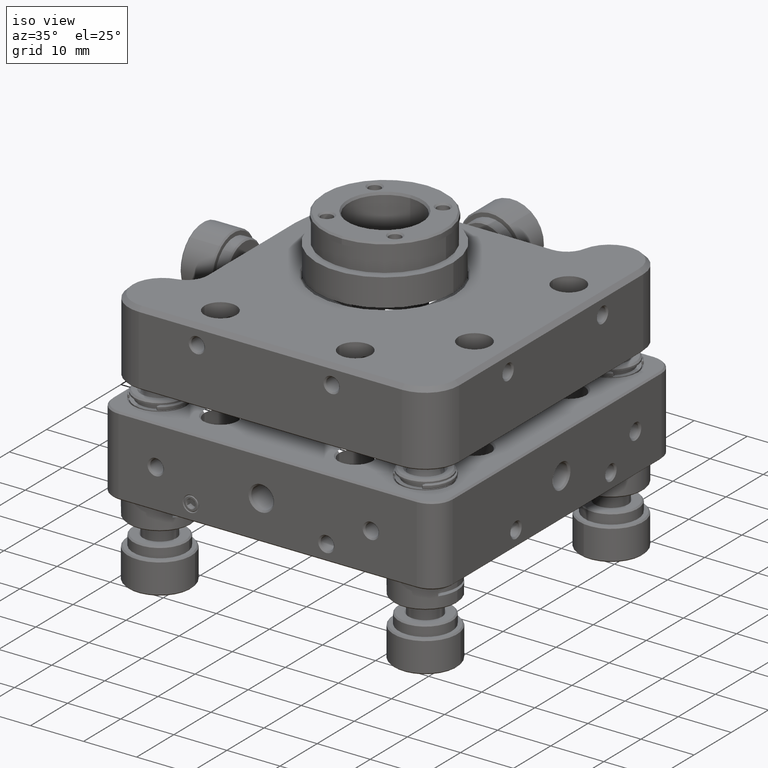
[diagram: clean part render]
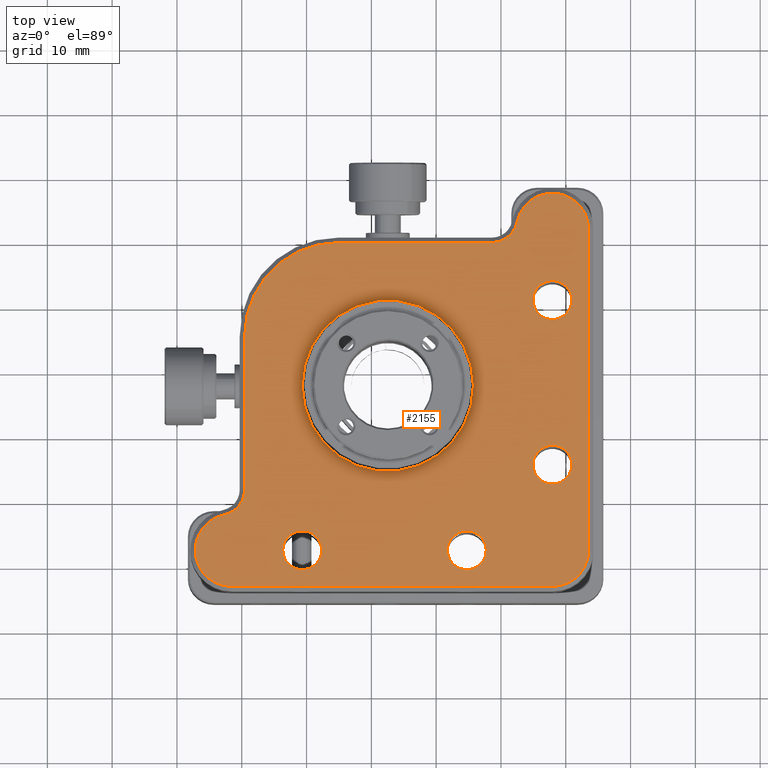
[diagram: tour spotlight — one face highlighted and labeled with its STEP entity id]
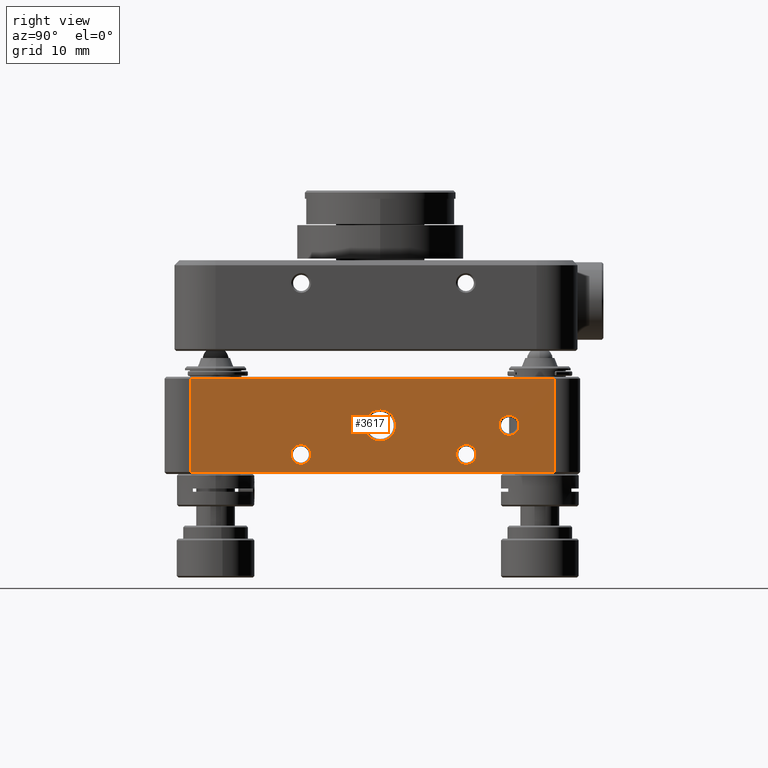
[diagram: tour spotlight — one face highlighted and labeled with its STEP entity id]
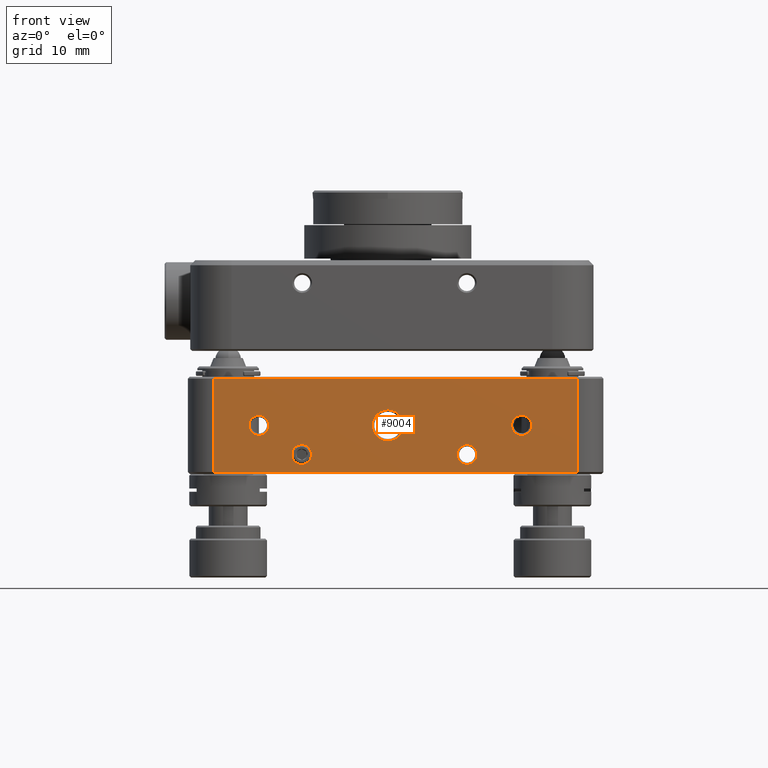
[diagram: tour spotlight — one face highlighted and labeled with its STEP entity id]
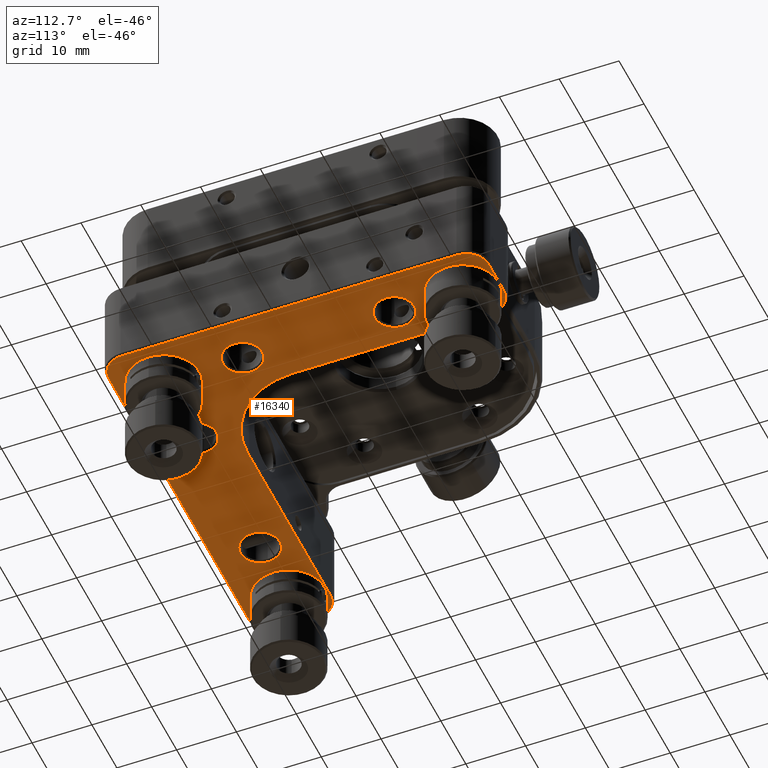
[diagram: tour spotlight — one face highlighted and labeled with its STEP entity id]
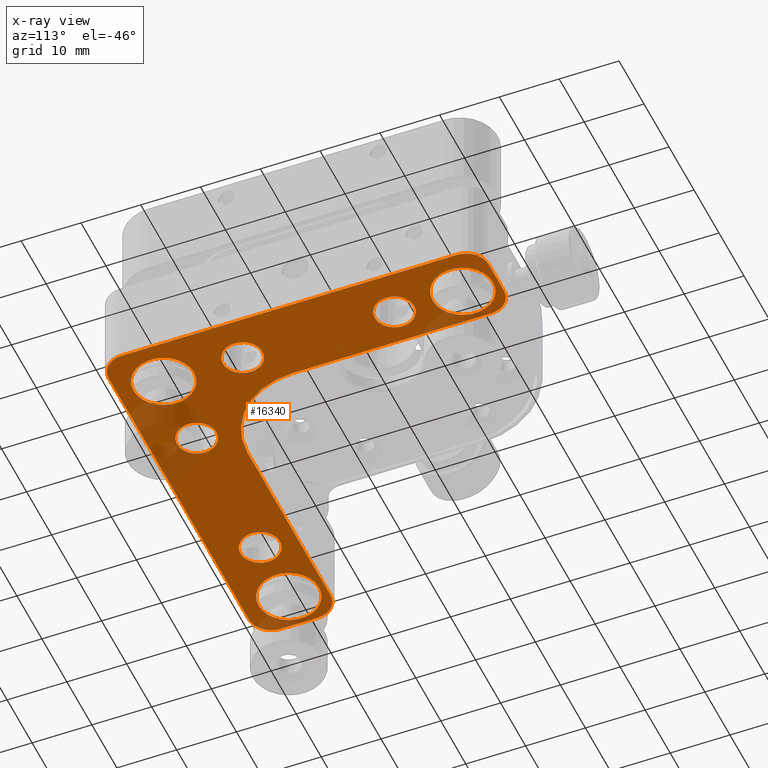
[diagram: x-ray of the same camera — body ghosted, this tour face saturated]
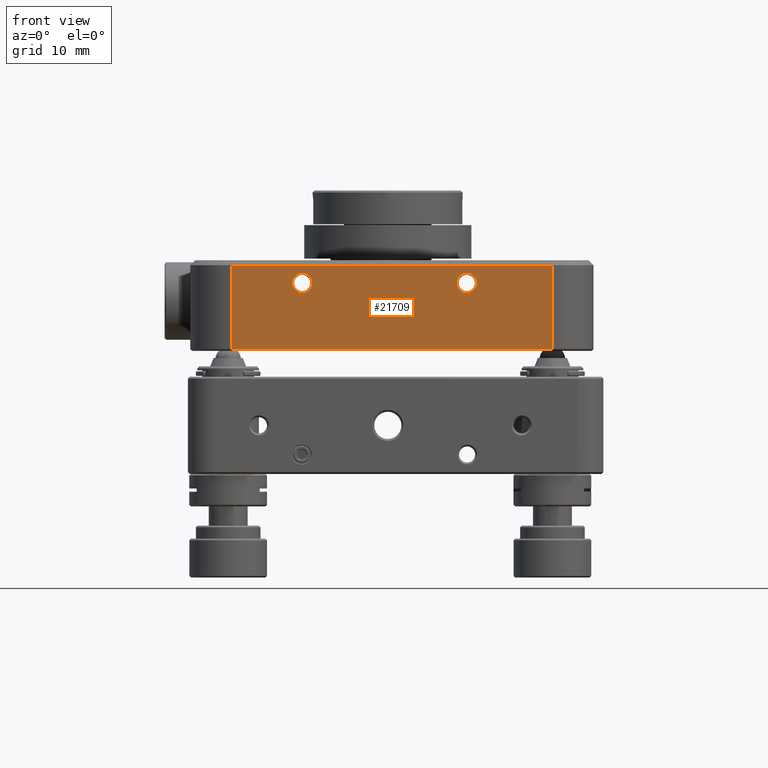
[diagram: tour spotlight — one face highlighted and labeled with its STEP entity id]
A machine part: a face-by-face anatomy tour. The part has 639 B-rep faces; the first image is the clean iso view, then the 5 largest visible faces are spotlighted one at a time (largest first), each with its STEP entity span.

Face 1 — top view, entity #2155. In plain terms, the highlighted planar face has unit normal (0, 0, 1).
Definition (entity closure, byte-faithful):
#91 = EDGE_CURVE ( 'NONE', #18645, #1948, #18310, .T. ) ;
#159 = CARTESIAN_POINT ( 'NONE',  ( -23.49499999999999744, -18.60744407999609962, 8.444999999999998508 ) ) ;
#200 = ORIENTED_EDGE ( 'NONE', *, *, #7917, .T. ) ;
#431 = CARTESIAN_POINT ( 'NONE',  ( 33.52800000000000580, -27.94000000000000128, 8.444999999999998508 ) ) ;
#629 = EDGE_CURVE ( 'NONE', #5373, #8947, #5137, .T. ) ;
#684 = ORIENTED_EDGE ( 'NONE', *, *, #8780, .T. ) ;
#799 = CARTESIAN_POINT ( 'NONE',  ( 22.46490052693105000, 22.70760000000000289, 8.444999999999998508 ) ) ;
#868 = DIRECTION ( 'NONE',  ( 0.0000000000000000000, 0.0000000000000000000, 1.000000000000000000 ) ) ;
#894 = CARTESIAN_POINT ( 'NONE',  ( 27.94000000000000128, 21.58999999999999986, 8.444999999999998508 ) ) ;
#901 = ORIENTED_EDGE ( 'NONE', *, *, #10213, .T. ) ;
#1005 = ORIENTED_EDGE ( 'NONE', *, *, #8923, .T. ) ;
#1009 = DIRECTION ( 'NONE',  ( 1.000000000000000000, 0.0000000000000000000, 0.0000000000000000000 ) ) ;
#1193 = CARTESIAN_POINT ( 'NONE',  ( -7.668000000000000149, -27.94000000000000128, 8.444999999999998508 ) ) ;
#1417 = DIRECTION ( 'NONE',  ( -1.000000000000000000, 0.0000000000000000000, 0.0000000000000000000 ) ) ;
#1780 = AXIS2_PLACEMENT_3D ( 'NONE', #12964, #7875, #1009 ) ;
#1948 = VERTEX_POINT ( 'NONE', #19872 ) ;
#1979 = DIRECTION ( 'NONE',  ( 0.0000000000000000000, 0.0000000000000000000, -1.000000000000000000 ) ) ;
#2155 = ADVANCED_FACE ( 'NONE', ( #19417, #7508, #19524, #14246, #7397, #12812 ), #17784, .T. ) ;
#2178 = EDGE_CURVE ( 'NONE', #8170, #4711, #11031, .T. ) ;
#2184 = CARTESIAN_POINT ( 'NONE',  ( 33.52800000000000580, 21.58999999999999986, 8.444999999999998508 ) ) ;
#2261 = CIRCLE ( 'NONE', #4732, 5.588000000000002743 ) ;
#2366 = CARTESIAN_POINT ( 'NONE',  ( 27.94000000000000128, -33.52800000000000580, 8.444999999999998508 ) ) ;
#2638 = DIRECTION ( 'NONE',  ( -1.000000000000000000, -2.929355265377524967E-16, 0.0000000000000000000 ) ) ;
#2644 = VERTEX_POINT ( 'NONE', #8866 ) ;
#2718 = DIRECTION ( 'NONE',  ( -1.000000000000000000, 0.0000000000000000000, 0.0000000000000000000 ) ) ;
#2746 = CARTESIAN_POINT ( 'NONE',  ( -5.080000000000000071, 19.55799999999999983, 8.444999999999998508 ) ) ;
#2829 = DIRECTION ( 'NONE',  ( 1.000000000000000000, 0.0000000000000000000, 0.0000000000000000000 ) ) ;
#3057 = EDGE_CURVE ( 'NONE', #7441, #21555, #10755, .T. ) ;
#3360 = ORIENTED_EDGE ( 'NONE', *, *, #12862, .T. ) ;
#3398 = EDGE_CURVE ( 'NONE', #17463, #15566, #21483, .T. ) ;
#3495 = DIRECTION ( 'NONE',  ( 0.0000000000000000000, 0.0000000000000000000, -1.000000000000000000 ) ) ;
#3507 = DIRECTION ( 'NONE',  ( 0.0000000000000000000, 1.000000000000000000, 0.0000000000000000000 ) ) ;
#3561 = ORIENTED_EDGE ( 'NONE', *, *, #7923, .T. ) ;
#3563 = CARTESIAN_POINT ( 'NONE',  ( -5.080000000000000071, 19.55799999999999983, 8.444999999999998508 ) ) ;
#3592 = CIRCLE ( 'NONE', #15956, 2.999999999999999112 ) ;
#3607 = CIRCLE ( 'NONE', #4658, 3.000000000000000888 ) ;
#3872 = DIRECTION ( 'NONE',  ( 0.0000000000000000000, 0.0000000000000000000, -1.000000000000000000 ) ) ;
#3958 = CARTESIAN_POINT ( 'NONE',  ( -21.58999999999999986, -27.94000000000000128, 8.444999999999998508 ) ) ;
#3976 = DIRECTION ( 'NONE',  ( -1.000000000000000000, 0.0000000000000000000, 0.0000000000000000000 ) ) ;
#3980 = DIRECTION ( 'NONE',  ( -1.000000000000000000, 0.0000000000000000000, 0.0000000000000000000 ) ) ;
#4073 = VERTEX_POINT ( 'NONE', #431 ) ;
#4087 = CARTESIAN_POINT ( 'NONE',  ( -19.55799999999999983, -18.60744407999609962, 8.444999999999998508 ) ) ;
#4258 = DIRECTION ( 'NONE',  ( -1.000000000000000000, 0.0000000000000000000, 0.0000000000000000000 ) ) ;
#4361 = EDGE_LOOP ( 'NONE', ( #5642, #10211 ) ) ;
#4492 = ORIENTED_EDGE ( 'NONE', *, *, #10307, .T. ) ;
#4606 = DIRECTION ( 'NONE',  ( 0.0000000000000000000, 0.0000000000000000000, -1.000000000000000000 ) ) ;
#4658 = AXIS2_PLACEMENT_3D ( 'NONE', #5762, #3872, #3980 ) ;
#4708 = AXIS2_PLACEMENT_3D ( 'NONE', #14756, #17964, #2829 ) ;
#4711 = VERTEX_POINT ( 'NONE', #3563 ) ;
#4732 = AXIS2_PLACEMENT_3D ( 'NONE', #894, #19453, #17819 ) ;
#4924 = CARTESIAN_POINT ( 'NONE',  ( -22.70760000000000289, -22.46490052693105000, 8.444999999999998508 ) ) ;
#4997 = AXIS2_PLACEMENT_3D ( 'NONE', #12128, #3495, #18852 ) ;
#5045 = CIRCLE ( 'NONE', #12463, 5.588000000000002743 ) ;
#5137 = CIRCLE ( 'NONE', #10067, 2.999999999999999112 ) ;
#5323 = DIRECTION ( 'NONE',  ( 0.0000000000000000000, -1.000000000000000000, 0.0000000000000000000 ) ) ;
#5373 = VERTEX_POINT ( 'NONE', #13908 ) ;
#5434 = LINE ( 'NONE', #4087, #16603 ) ;
#5453 = ORIENTED_EDGE ( 'NONE', *, *, #91, .T. ) ;
#5468 = DIRECTION ( 'NONE',  ( 0.0000000000000000000, 0.0000000000000000000, -1.000000000000000000 ) ) ;
#5558 = ORIENTED_EDGE ( 'NONE', *, *, #20984, .T. ) ;
#5642 = ORIENTED_EDGE ( 'NONE', *, *, #3398, .T. ) ;
#5649 = VERTEX_POINT ( 'NONE', #12353 ) ;
#5731 = VERTEX_POINT ( 'NONE', #11462 ) ;
#5762 = CARTESIAN_POINT ( 'NONE',  ( 14.73200000000000109, -27.94000000000000128, 8.444999999999998508 ) ) ;
#6016 = CIRCLE ( 'NONE', #18353, 14.47800000000000153 ) ;
#6186 = VERTEX_POINT ( 'NONE', #12881 ) ;
#6670 = CARTESIAN_POINT ( 'NONE',  ( 14.73200000000000109, -27.94000000000000128, 8.444999999999998508 ) ) ;
#6749 = ORIENTED_EDGE ( 'NONE', *, *, #2178, .T. ) ;
#6845 = AXIS2_PLACEMENT_3D ( 'NONE', #9927, #16666, #16456 ) ;
#7090 = DIRECTION ( 'NONE',  ( 0.0000000000000000000, 0.0000000000000000000, 1.000000000000000000 ) ) ;
#7219 = ORIENTED_EDGE ( 'NONE', *, *, #12743, .T. ) ;
#7369 = AXIS2_PLACEMENT_3D ( 'NONE', #9108, #7664, #14510 ) ;
#7397 = FACE_BOUND ( 'NONE', #21550, .T. ) ;
#7417 = CARTESIAN_POINT ( 'NONE',  ( -5.080000000000000071, 5.080000000000000071, 8.444999999999998508 ) ) ;
#7441 = VERTEX_POINT ( 'NONE', #11758 ) ;
#7508 = FACE_BOUND ( 'NONE', #19165, .T. ) ;
#7566 = ORIENTED_EDGE ( 'NONE', *, *, #12915, .T. ) ;
#7577 = VERTEX_POINT ( 'NONE', #799 ) ;
#7647 = EDGE_CURVE ( 'NONE', #11659, #9522, #10593, .T. ) ;
#7664 = DIRECTION ( 'NONE',  ( 0.0000000000000000000, 0.0000000000000000000, -1.000000000000000000 ) ) ;
#7875 = DIRECTION ( 'NONE',  ( 0.0000000000000000000, 0.0000000000000000000, 1.000000000000000000 ) ) ;
#7917 = EDGE_CURVE ( 'NONE', #17546, #5731, #15571, .T. ) ;
#7923 = EDGE_CURVE ( 'NONE', #6186, #2644, #5434, .T. ) ;
#7939 = EDGE_CURVE ( 'NONE', #4711, #6186, #6016, .T. ) ;
#8170 = VERTEX_POINT ( 'NONE', #9727 ) ;
#8732 = CARTESIAN_POINT ( 'NONE',  ( -27.17800000000000082, -27.94000000000000128, 8.444999999999998508 ) ) ;
#8751 = DIRECTION ( 'NONE',  ( 0.0000000000000000000, 0.0000000000000000000, -1.000000000000000000 ) ) ;
#8780 = EDGE_CURVE ( 'NONE', #7577, #8170, #11718, .T. ) ;
#8813 = CIRCLE ( 'NONE', #11628, 2.999999999999999112 ) ;
#8866 = CARTESIAN_POINT ( 'NONE',  ( -19.55799999999999983, -18.60744407999609962, 8.444999999999998508 ) ) ;
#8923 = EDGE_CURVE ( 'NONE', #16365, #5649, #3592, .T. ) ;
#8947 = VERTEX_POINT ( 'NONE', #12448 ) ;
#9099 = VECTOR ( 'NONE', #2638, 1000.000000000000000 ) ;
#9105 = EDGE_CURVE ( 'NONE', #15566, #17463, #3607, .T. ) ;
#9108 = CARTESIAN_POINT ( 'NONE',  ( 2.540000000000000036, -2.540000000000000036, 8.444999999999998508 ) ) ;
#9409 = ORIENTED_EDGE ( 'NONE', *, *, #18049, .T. ) ;
#9449 = AXIS2_PLACEMENT_3D ( 'NONE', #3958, #10807, #17451 ) ;
#9522 = VERTEX_POINT ( 'NONE', #8732 ) ;
#9664 = ORIENTED_EDGE ( 'NONE', *, *, #3057, .T. ) ;
#9727 = CARTESIAN_POINT ( 'NONE',  ( 18.60744407999609962, 19.55799999999999983, 8.444999999999998508 ) ) ;
#9927 = CARTESIAN_POINT ( 'NONE',  ( -21.58999999999999986, -27.94000000000000128, 8.444999999999998508 ) ) ;
#10067 = AXIS2_PLACEMENT_3D ( 'NONE', #14670, #4606, #11356 ) ;
#10211 = ORIENTED_EDGE ( 'NONE', *, *, #9105, .T. ) ;
#10213 = EDGE_CURVE ( 'NONE', #2644, #11659, #17974, .T. ) ;
#10307 = EDGE_CURVE ( 'NONE', #8947, #5373, #8813, .T. ) ;
#10593 = CIRCLE ( 'NONE', #1780, 5.587999999999999190 ) ;
#10701 = CIRCLE ( 'NONE', #16703, 2.999999999999999112 ) ;
#10755 = LINE ( 'NONE', #2366, #14072 ) ;
#10807 = DIRECTION ( 'NONE',  ( 0.0000000000000000000, 0.0000000000000000000, 1.000000000000000000 ) ) ;
#10907 = AXIS2_PLACEMENT_3D ( 'NONE', #159, #5468, #12216 ) ;
#10949 = CARTESIAN_POINT ( 'NONE',  ( 11.73199999999999932, -27.94000000000000128, 8.444999999999998508 ) ) ;
#11031 = LINE ( 'NONE', #2746, #9099 ) ;
#11257 = DIRECTION ( 'NONE',  ( 1.000000000000000000, 0.0000000000000000000, 0.0000000000000000000 ) ) ;
#11343 = AXIS2_PLACEMENT_3D ( 'NONE', #17122, #1979, #13362 ) ;
#11356 = DIRECTION ( 'NONE',  ( -1.000000000000000000, 0.0000000000000000000, 0.0000000000000000000 ) ) ;
#11462 = CARTESIAN_POINT ( 'NONE',  ( 24.94000000000000128, -14.73200000000000109, 8.444999999999998508 ) ) ;
#11628 = AXIS2_PLACEMENT_3D ( 'NONE', #19395, #15669, #4258 ) ;
#11659 = VERTEX_POINT ( 'NONE', #4924 ) ;
#11718 = CIRCLE ( 'NONE', #4997, 3.936999999999999389 ) ;
#11758 = CARTESIAN_POINT ( 'NONE',  ( -21.58999999999999986, -33.52800000000000580, 8.444999999999998508 ) ) ;
#11760 = ORIENTED_EDGE ( 'NONE', *, *, #7647, .T. ) ;
#11940 = VERTEX_POINT ( 'NONE', #18267 ) ;
#12128 = CARTESIAN_POINT ( 'NONE',  ( 18.60744407999609962, 23.49499999999999744, 8.444999999999998508 ) ) ;
#12216 = DIRECTION ( 'NONE',  ( 1.000000000000000000, 0.0000000000000000000, 0.0000000000000000000 ) ) ;
#12221 = DIRECTION ( 'NONE',  ( 1.000000000000000000, 0.0000000000000000000, 0.0000000000000000000 ) ) ;
#12283 = EDGE_CURVE ( 'NONE', #11940, #7577, #2261, .T. ) ;
#12353 = CARTESIAN_POINT ( 'NONE',  ( -13.66799999999999926, -27.94000000000000128, 8.444999999999998508 ) ) ;
#12448 = CARTESIAN_POINT ( 'NONE',  ( 24.94000000000000128, 10.66800000000000104, 8.444999999999998508 ) ) ;
#12463 = AXIS2_PLACEMENT_3D ( 'NONE', #17896, #868, #11257 ) ;
#12743 = EDGE_CURVE ( 'NONE', #21555, #4073, #5045, .T. ) ;
#12812 = FACE_OUTER_BOUND ( 'NONE', #13914, .T. ) ;
#12862 = EDGE_CURVE ( 'NONE', #5731, #17546, #10701, .T. ) ;
#12881 = CARTESIAN_POINT ( 'NONE',  ( -19.55799999999999983, 5.080000000000000071, 8.444999999999998508 ) ) ;
#12915 = EDGE_CURVE ( 'NONE', #9522, #7441, #14599, .T. ) ;
#12964 = CARTESIAN_POINT ( 'NONE',  ( -21.58999999999999986, -27.94000000000000128, 8.444999999999998508 ) ) ;
#13362 = DIRECTION ( 'NONE',  ( -1.000000000000000000, 0.0000000000000000000, 0.0000000000000000000 ) ) ;
#13546 = ORIENTED_EDGE ( 'NONE', *, *, #16554, .T. ) ;
#13574 = LINE ( 'NONE', #2184, #21818 ) ;
#13795 = AXIS2_PLACEMENT_3D ( 'NONE', #14161, #8751, #3976 ) ;
#13829 = DIRECTION ( 'NONE',  ( 1.000000000000000000, 0.0000000000000000000, 0.0000000000000000000 ) ) ;
#13889 = CARTESIAN_POINT ( 'NONE',  ( 27.94000000000000128, -33.52800000000000580, 8.444999999999998508 ) ) ;
#13908 = CARTESIAN_POINT ( 'NONE',  ( 30.93999999999999773, 10.66800000000000104, 8.444999999999998508 ) ) ;
#13914 = EDGE_LOOP ( 'NONE', ( #3561, #901, #11760, #7566, #9664, #7219, #13546, #16254, #684, #6749, #19565 ) ) ;
#14037 = EDGE_LOOP ( 'NONE', ( #5453, #5558 ) ) ;
#14072 = VECTOR ( 'NONE', #12221, 1000.000000000000000 ) ;
#14089 = AXIS2_PLACEMENT_3D ( 'NONE', #6670, #14734, #20235 ) ;
#14161 = CARTESIAN_POINT ( 'NONE',  ( 27.94000000000000128, -14.73200000000000109, 8.444999999999998508 ) ) ;
#14246 = FACE_BOUND ( 'NONE', #18095, .T. ) ;
#14366 = DIRECTION ( 'NONE',  ( 0.0000000000000000000, 0.0000000000000000000, -1.000000000000000000 ) ) ;
#14510 = DIRECTION ( 'NONE',  ( 1.000000000000000000, 0.0000000000000000000, 0.0000000000000000000 ) ) ;
#14599 = CIRCLE ( 'NONE', #6845, 5.587999999999999190 ) ;
#14605 = ORIENTED_EDGE ( 'NONE', *, *, #629, .T. ) ;
#14670 = CARTESIAN_POINT ( 'NONE',  ( 27.94000000000000128, 10.66800000000000104, 8.444999999999998508 ) ) ;
#14734 = DIRECTION ( 'NONE',  ( 0.0000000000000000000, 0.0000000000000000000, -1.000000000000000000 ) ) ;
#14756 = CARTESIAN_POINT ( 'NONE',  ( 2.540000000000000036, -2.540000000000000036, 8.444999999999998508 ) ) ;
#15566 = VERTEX_POINT ( 'NONE', #18857 ) ;
#15571 = CIRCLE ( 'NONE', #13795, 2.999999999999999112 ) ;
#15669 = DIRECTION ( 'NONE',  ( 0.0000000000000000000, 0.0000000000000000000, -1.000000000000000000 ) ) ;
#15956 = AXIS2_PLACEMENT_3D ( 'NONE', #19493, #17860, #2718 ) ;
#16017 = CIRCLE ( 'NONE', #4708, 13.20799999999999841 ) ;
#16254 = ORIENTED_EDGE ( 'NONE', *, *, #12283, .T. ) ;
#16365 = VERTEX_POINT ( 'NONE', #1193 ) ;
#16456 = DIRECTION ( 'NONE',  ( 1.000000000000000000, 0.0000000000000000000, 0.0000000000000000000 ) ) ;
#16554 = EDGE_CURVE ( 'NONE', #4073, #11940, #13574, .T. ) ;
#16603 = VECTOR ( 'NONE', #5323, 1000.000000000000000 ) ;
#16666 = DIRECTION ( 'NONE',  ( 0.0000000000000000000, 0.0000000000000000000, 1.000000000000000000 ) ) ;
#16703 = AXIS2_PLACEMENT_3D ( 'NONE', #17682, #14366, #1417 ) ;
#17122 = CARTESIAN_POINT ( 'NONE',  ( -10.66800000000000104, -27.94000000000000128, 8.444999999999998508 ) ) ;
#17451 = DIRECTION ( 'NONE',  ( 1.000000000000000000, 0.0000000000000000000, 0.0000000000000000000 ) ) ;
#17463 = VERTEX_POINT ( 'NONE', #10949 ) ;
#17546 = VERTEX_POINT ( 'NONE', #20527 ) ;
#17682 = CARTESIAN_POINT ( 'NONE',  ( 27.94000000000000128, -14.73200000000000109, 8.444999999999998508 ) ) ;
#17784 = PLANE ( 'NONE',  #9449 ) ;
#17819 = DIRECTION ( 'NONE',  ( 1.000000000000000000, 0.0000000000000000000, 0.0000000000000000000 ) ) ;
#17860 = DIRECTION ( 'NONE',  ( 0.0000000000000000000, 0.0000000000000000000, -1.000000000000000000 ) ) ;
#17896 = CARTESIAN_POINT ( 'NONE',  ( 27.94000000000000128, -27.94000000000000128, 8.444999999999998508 ) ) ;
#17964 = DIRECTION ( 'NONE',  ( 0.0000000000000000000, 0.0000000000000000000, -1.000000000000000000 ) ) ;
#17974 = CIRCLE ( 'NONE', #10907, 3.936999999999999389 ) ;
#18043 = CIRCLE ( 'NONE', #11343, 2.999999999999999112 ) ;
#18049 = EDGE_CURVE ( 'NONE', #5649, #16365, #18043, .T. ) ;
#18095 = EDGE_LOOP ( 'NONE', ( #3360, #200 ) ) ;
#18267 = CARTESIAN_POINT ( 'NONE',  ( 33.52800000000000580, 21.58999999999999986, 8.444999999999998508 ) ) ;
#18310 = CIRCLE ( 'NONE', #7369, 13.20799999999999841 ) ;
#18353 = AXIS2_PLACEMENT_3D ( 'NONE', #7417, #7090, #13829 ) ;
#18645 = VERTEX_POINT ( 'NONE', #19888 ) ;
#18852 = DIRECTION ( 'NONE',  ( 1.000000000000000000, 8.812412882787947075E-16, 0.0000000000000000000 ) ) ;
#18857 = CARTESIAN_POINT ( 'NONE',  ( 17.73200000000000287, -27.94000000000000128, 8.444999999999998508 ) ) ;
#19165 = EDGE_LOOP ( 'NONE', ( #9409, #1005 ) ) ;
#19395 = CARTESIAN_POINT ( 'NONE',  ( 27.94000000000000128, 10.66800000000000104, 8.444999999999998508 ) ) ;
#19417 = FACE_BOUND ( 'NONE', #14037, .T. ) ;
#19453 = DIRECTION ( 'NONE',  ( 0.0000000000000000000, 0.0000000000000000000, 1.000000000000000000 ) ) ;
#19493 = CARTESIAN_POINT ( 'NONE',  ( -10.66800000000000104, -27.94000000000000128, 8.444999999999998508 ) ) ;
#19524 = FACE_BOUND ( 'NONE', #4361, .T. ) ;
#19565 = ORIENTED_EDGE ( 'NONE', *, *, #7939, .T. ) ;
#19872 = CARTESIAN_POINT ( 'NONE',  ( -10.66800000000000104, -2.540000000000000036, 8.444999999999998508 ) ) ;
#19888 = CARTESIAN_POINT ( 'NONE',  ( 15.74800000000000111, -2.540000000000000036, 8.444999999999998508 ) ) ;
#20235 = DIRECTION ( 'NONE',  ( -1.000000000000000000, 0.0000000000000000000, 0.0000000000000000000 ) ) ;
#20527 = CARTESIAN_POINT ( 'NONE',  ( 30.93999999999999773, -14.73200000000000109, 8.444999999999998508 ) ) ;
#20984 = EDGE_CURVE ( 'NONE', #1948, #18645, #16017, .T. ) ;
#21483 = CIRCLE ( 'NONE', #14089, 3.000000000000000888 ) ;
#21550 = EDGE_LOOP ( 'NONE', ( #4492, #14605 ) ) ;
#21555 = VERTEX_POINT ( 'NONE', #13889 ) ;
#21818 = VECTOR ( 'NONE', #3507, 1000.000000000000000 ) ;

Face 2 — right view, entity #3617. In plain terms, the highlighted planar face has unit normal (-1, 0, 0).
Definition (entity closure, byte-faithful):
#362 = ORIENTED_EDGE ( 'NONE', *, *, #5594, .T. ) ;
#382 = CIRCLE ( 'NONE', #3209, 1.524999999999998579 ) ;
#624 = ORIENTED_EDGE ( 'NONE', *, *, #20930, .F. ) ;
#732 = CARTESIAN_POINT ( 'NONE',  ( 35.81400000000000006, -31.81400000000000361, -25.01899999999999835 ) ) ;
#858 = VERTEX_POINT ( 'NONE', #4040 ) ;
#1123 = ORIENTED_EDGE ( 'NONE', *, *, #5857, .T. ) ;
#1395 = AXIS2_PLACEMENT_3D ( 'NONE', #13273, #11613, #21428 ) ;
#1411 = AXIS2_PLACEMENT_3D ( 'NONE', #5300, #3633, #8628 ) ;
#1464 = CARTESIAN_POINT ( 'NONE',  ( 35.81400000000000006, 24.32099999999999795, -24.22500000000000497 ) ) ;
#2061 = LINE ( 'NONE', #9133, #14991 ) ;
#2189 = LINE ( 'NONE', #732, #15043 ) ;
#2213 = CARTESIAN_POINT ( 'NONE',  ( 35.81400000000000006, -31.81400000000000361, -24.22500000000000853 ) ) ;
#2214 = CARTESIAN_POINT ( 'NONE',  ( 35.81400000000000006, -14.78385086287003958, -21.52499999999999858 ) ) ;
#2315 = ORIENTED_EDGE ( 'NONE', *, *, #8700, .T. ) ;
#2319 = AXIS2_PLACEMENT_3D ( 'NONE', #2214, #18786, #15705 ) ;
#2538 = VECTOR ( 'NONE', #8215, 1000.000000000000000 ) ;
#2671 = DIRECTION ( 'NONE',  ( 4.760512959350109744E-17, 0.0000000000000000000, 1.000000000000000000 ) ) ;
#2678 = VERTEX_POINT ( 'NONE', #12294 ) ;
#2730 = DIRECTION ( 'NONE',  ( 0.0000000000000000000, -1.000000000000000000, 0.0000000000000000000 ) ) ;
#2883 = AXIS2_PLACEMENT_3D ( 'NONE', #5383, #13785, #12016 ) ;
#3161 = CIRCLE ( 'NONE', #1395, 2.400000000000012346 ) ;
#3209 = AXIS2_PLACEMENT_3D ( 'NONE', #13700, #12042, #10372 ) ;
#3455 = ORIENTED_EDGE ( 'NONE', *, *, #10884, .T. ) ;
#3617 = ADVANCED_FACE ( 'NONE', ( #7859, #9410, #14386, #14278, #9305 ), #12844, .F. ) ;
#3633 = DIRECTION ( 'NONE',  ( 1.000000000000000000, 0.0000000000000000000, 0.0000000000000000000 ) ) ;
#3881 = EDGE_CURVE ( 'NONE', #20752, #16954, #3161, .T. ) ;
#4040 = CARTESIAN_POINT ( 'NONE',  ( 35.81400000000000006, -31.81400000000000361, -9.825000000000022382 ) ) ;
#4052 = DIRECTION ( 'NONE',  ( -4.760512959350109744E-17, 1.203099312152367935E-17, -1.000000000000000000 ) ) ;
#4082 = ORIENTED_EDGE ( 'NONE', *, *, #7096, .T. ) ;
#4447 = CIRCLE ( 'NONE', #6570, 1.549999999999995826 ) ;
#4696 = ORIENTED_EDGE ( 'NONE', *, *, #8326, .F. ) ;
#4749 = VERTEX_POINT ( 'NONE', #8991 ) ;
#5031 = EDGE_LOOP ( 'NONE', ( #2315, #362 ) ) ;
#5068 = EDGE_CURVE ( 'NONE', #2678, #7038, #19953, .T. ) ;
#5300 = CARTESIAN_POINT ( 'NONE',  ( 35.81400000000000006, -14.78385086287003958, -21.52499999999999858 ) ) ;
#5383 = CARTESIAN_POINT ( 'NONE',  ( 35.81400000000000006, 17.34799999999999898, -17.02499999999999858 ) ) ;
#5480 = CARTESIAN_POINT ( 'NONE',  ( 35.81399999999999295, -31.81400000000000361, -9.825000000000024158 ) ) ;
#5540 = EDGE_CURVE ( 'NONE', #858, #12686, #2189, .T. ) ;
#5594 = EDGE_CURVE ( 'NONE', #15866, #4749, #4447, .T. ) ;
#5632 = AXIS2_PLACEMENT_3D ( 'NONE', #20891, #19233, #2671 ) ;
#5780 = VERTEX_POINT ( 'NONE', #20052 ) ;
#5857 = EDGE_CURVE ( 'NONE', #21223, #858, #10338, .T. ) ;
#6570 = AXIS2_PLACEMENT_3D ( 'NONE', #17764, #19075, #2730 ) ;
#6795 = EDGE_LOOP ( 'NONE', ( #17950, #19564 ) ) ;
#7038 = VERTEX_POINT ( 'NONE', #18545 ) ;
#7096 = EDGE_CURVE ( 'NONE', #16954, #20752, #12754, .T. ) ;
#7101 = AXIS2_PLACEMENT_3D ( 'NONE', #10047, #8174, #16788 ) ;
#7801 = CARTESIAN_POINT ( 'NONE',  ( 35.81400000000000006, 10.74787746154795975, -21.52499999999999858 ) ) ;
#7859 = FACE_BOUND ( 'NONE', #10663, .T. ) ;
#7901 = CIRCLE ( 'NONE', #20231, 1.524999999999998579 ) ;
#8174 = DIRECTION ( 'NONE',  ( -1.000000000000000000, 1.228574435363945913E-16, 4.760512959350109744E-17 ) ) ;
#8186 = CIRCLE ( 'NONE', #2883, 1.549999999999995826 ) ;
#8215 = DIRECTION ( 'NONE',  ( 1.228574435363945913E-16, 1.000000000000000000, 1.081919997490797876E-16 ) ) ;
#8326 = EDGE_CURVE ( 'NONE', #5780, #20020, #382, .T. ) ;
#8628 = DIRECTION ( 'NONE',  ( 0.0000000000000000000, 0.0000000000000000000, -1.000000000000000000 ) ) ;
#8700 = EDGE_CURVE ( 'NONE', #4749, #15866, #8186, .T. ) ;
#8991 = CARTESIAN_POINT ( 'NONE',  ( 35.81400000000000006, 17.34799999999999898, -18.57499999999999574 ) ) ;
#9133 = CARTESIAN_POINT ( 'NONE',  ( 35.81400000000000006, 24.32099999999999795, -25.01899999999999835 ) ) ;
#9305 = FACE_OUTER_BOUND ( 'NONE', #13389, .T. ) ;
#9410 = FACE_BOUND ( 'NONE', #5031, .T. ) ;
#10047 = CARTESIAN_POINT ( 'NONE',  ( 35.81400000000000006, -2.543999999999996042, -17.02500000000000568 ) ) ;
#10338 = LINE ( 'NONE', #5480, #19280 ) ;
#10372 = DIRECTION ( 'NONE',  ( 0.0000000000000000000, 0.0000000000000000000, -1.000000000000000000 ) ) ;
#10649 = CARTESIAN_POINT ( 'NONE',  ( 35.81400000000000006, 24.32099999999999795, -9.825000000000024158 ) ) ;
#10663 = EDGE_LOOP ( 'NONE', ( #21688, #4082 ) ) ;
#10884 = EDGE_CURVE ( 'NONE', #12686, #17066, #18585, .T. ) ;
#11115 = DIRECTION ( 'NONE',  ( 1.000000000000000000, 0.0000000000000000000, 0.0000000000000000000 ) ) ;
#11335 = DIRECTION ( 'NONE',  ( 0.0000000000000000000, 0.0000000000000000000, -1.000000000000000000 ) ) ;
#11613 = DIRECTION ( 'NONE',  ( -1.000000000000000000, 1.228574435363945913E-16, 4.760512959350109744E-17 ) ) ;
#12016 = DIRECTION ( 'NONE',  ( 0.0000000000000000000, -1.000000000000000000, 0.0000000000000000000 ) ) ;
#12042 = DIRECTION ( 'NONE',  ( 1.000000000000000000, 0.0000000000000000000, 0.0000000000000000000 ) ) ;
#12294 = CARTESIAN_POINT ( 'NONE',  ( 35.81400000000000006, -14.78385086287003958, -23.05000000000000071 ) ) ;
#12425 = CARTESIAN_POINT ( 'NONE',  ( 35.81400000000000006, 17.34799999999999898, -15.47500000000000142 ) ) ;
#12686 = VERTEX_POINT ( 'NONE', #2213 ) ;
#12754 = CIRCLE ( 'NONE', #7101, 2.400000000000012346 ) ;
#12844 = PLANE ( 'NONE',  #5632 ) ;
#13273 = CARTESIAN_POINT ( 'NONE',  ( 35.81400000000000006, -2.543999999999996042, -17.02500000000000568 ) ) ;
#13389 = EDGE_LOOP ( 'NONE', ( #14306, #3455, #16673, #1123 ) ) ;
#13549 = CARTESIAN_POINT ( 'NONE',  ( 35.81400000000000006, -2.543999999999995598, -14.62499999999999289 ) ) ;
#13679 = CARTESIAN_POINT ( 'NONE',  ( 35.81400000000000006, -2.543999999999996042, -19.42500000000001847 ) ) ;
#13700 = CARTESIAN_POINT ( 'NONE',  ( 35.81400000000000006, 10.74787746154795975, -21.52499999999999858 ) ) ;
#13785 = DIRECTION ( 'NONE',  ( -1.000000000000000000, 1.228574435363945913E-16, 4.760512959350109744E-17 ) ) ;
#14278 = FACE_BOUND ( 'NONE', #20118, .T. ) ;
#14306 = ORIENTED_EDGE ( 'NONE', *, *, #5540, .T. ) ;
#14386 = FACE_BOUND ( 'NONE', #6795, .T. ) ;
#14416 = CARTESIAN_POINT ( 'NONE',  ( 35.81400000000000006, 24.32099999999999795, -24.22500000000000142 ) ) ;
#14991 = VECTOR ( 'NONE', #17199, 1000.000000000000000 ) ;
#15043 = VECTOR ( 'NONE', #4052, 1000.000000000000000 ) ;
#15705 = DIRECTION ( 'NONE',  ( 0.0000000000000000000, 0.0000000000000000000, -1.000000000000000000 ) ) ;
#15866 = VERTEX_POINT ( 'NONE', #12425 ) ;
#16673 = ORIENTED_EDGE ( 'NONE', *, *, #21461, .T. ) ;
#16788 = DIRECTION ( 'NONE',  ( 0.0000000000000000000, -1.000000000000000000, 0.0000000000000000000 ) ) ;
#16954 = VERTEX_POINT ( 'NONE', #13549 ) ;
#17066 = VERTEX_POINT ( 'NONE', #14416 ) ;
#17087 = DIRECTION ( 'NONE',  ( -1.228574435363945913E-16, -1.000000000000000000, -1.203099312152367319E-17 ) ) ;
#17199 = DIRECTION ( 'NONE',  ( 4.760512959350109744E-17, -1.203099312152367935E-17, 1.000000000000000000 ) ) ;
#17564 = EDGE_CURVE ( 'NONE', #7038, #2678, #20453, .T. ) ;
#17764 = CARTESIAN_POINT ( 'NONE',  ( 35.81400000000000006, 17.34799999999999898, -17.02499999999999858 ) ) ;
#17950 = ORIENTED_EDGE ( 'NONE', *, *, #5068, .F. ) ;
#18545 = CARTESIAN_POINT ( 'NONE',  ( 35.81400000000000006, -14.78385086287003958, -20.00000000000000000 ) ) ;
#18585 = LINE ( 'NONE', #1464, #2538 ) ;
#18786 = DIRECTION ( 'NONE',  ( 1.000000000000000000, 0.0000000000000000000, 0.0000000000000000000 ) ) ;
#19075 = DIRECTION ( 'NONE',  ( -1.000000000000000000, 1.228574435363945913E-16, 4.760512959350109744E-17 ) ) ;
#19233 = DIRECTION ( 'NONE',  ( -1.000000000000000000, 1.228574435363945913E-16, 4.760512959350109744E-17 ) ) ;
#19280 = VECTOR ( 'NONE', #17087, 1000.000000000000000 ) ;
#19548 = CARTESIAN_POINT ( 'NONE',  ( 35.81400000000000006, 10.74787746154795975, -23.05000000000000071 ) ) ;
#19564 = ORIENTED_EDGE ( 'NONE', *, *, #17564, .F. ) ;
#19953 = CIRCLE ( 'NONE', #2319, 1.524999999999998579 ) ;
#20020 = VERTEX_POINT ( 'NONE', #19548 ) ;
#20052 = CARTESIAN_POINT ( 'NONE',  ( 35.81400000000000006, 10.74787746154795975, -20.00000000000000000 ) ) ;
#20118 = EDGE_LOOP ( 'NONE', ( #624, #4696 ) ) ;
#20231 = AXIS2_PLACEMENT_3D ( 'NONE', #7801, #11115, #11335 ) ;
#20453 = CIRCLE ( 'NONE', #1411, 1.524999999999998579 ) ;
#20752 = VERTEX_POINT ( 'NONE', #13679 ) ;
#20891 = CARTESIAN_POINT ( 'NONE',  ( 35.81400000000000006, 11.58059739300266067, -25.01899999999999835 ) ) ;
#20930 = EDGE_CURVE ( 'NONE', #20020, #5780, #7901, .T. ) ;
#21223 = VERTEX_POINT ( 'NONE', #10649 ) ;
#21428 = DIRECTION ( 'NONE',  ( 0.0000000000000000000, -1.000000000000000000, 0.0000000000000000000 ) ) ;
#21461 = EDGE_CURVE ( 'NONE', #17066, #21223, #2061, .T. ) ;
#21688 = ORIENTED_EDGE ( 'NONE', *, *, #3881, .T. ) ;

Face 3 — front view, entity #9004. In plain terms, the highlighted planar face has unit normal (0, 1, 0).
Definition (entity closure, byte-faithful):
#142 = CARTESIAN_POINT ( 'NONE',  ( 31.81400000000000361, -35.81400000000001427, -24.22500000000001208 ) ) ;
#172 = VERTEX_POINT ( 'NONE', #904 ) ;
#254 = VERTEX_POINT ( 'NONE', #11297 ) ;
#480 = CIRCLE ( 'NONE', #10031, 1.549999999999964517 ) ;
#505 = DIRECTION ( 'NONE',  ( -1.000000000000000000, 0.0000000000000000000, 0.0000000000000000000 ) ) ;
#815 = EDGE_CURVE ( 'NONE', #18370, #2887, #16433, .T. ) ;
#825 = DIRECTION ( 'NONE',  ( 3.685723306091839956E-16, 1.000000000000000000, 1.203099312152365932E-17 ) ) ;
#904 = CARTESIAN_POINT ( 'NONE',  ( 14.78385086286999872, -35.81400000000000006, -23.05000000000000071 ) ) ;
#1019 = EDGE_CURVE ( 'NONE', #16023, #13122, #1575, .T. ) ;
#1488 = DIRECTION ( 'NONE',  ( 3.685723306091839956E-16, 1.000000000000000000, 1.203099312152365932E-17 ) ) ;
#1575 = CIRCLE ( 'NONE', #15047, 2.400000000000010569 ) ;
#1609 = DIRECTION ( 'NONE',  ( 0.0000000000000000000, -1.000000000000000000, 0.0000000000000000000 ) ) ;
#1670 = DIRECTION ( 'NONE',  ( -1.000000000000000000, 0.0000000000000000000, 0.0000000000000000000 ) ) ;
#1710 = FACE_BOUND ( 'NONE', #14749, .T. ) ;
#1793 = ORIENTED_EDGE ( 'NONE', *, *, #18560, .F. ) ;
#1808 = AXIS2_PLACEMENT_3D ( 'NONE', #17246, #7411, #10607 ) ;
#1811 = CARTESIAN_POINT ( 'NONE',  ( -24.32099999999999795, -35.81399999999999295, -9.825000000000020606 ) ) ;
#1993 = CARTESIAN_POINT ( 'NONE',  ( 31.81400000000000361, -35.81400000000000006, -9.825000000000024158 ) ) ;
#2090 = CIRCLE ( 'NONE', #14444, 1.549999999999964517 ) ;
#2276 = EDGE_LOOP ( 'NONE', ( #7379, #12505 ) ) ;
#2323 = LINE ( 'NONE', #142, #9188 ) ;
#2397 = VERTEX_POINT ( 'NONE', #17838 ) ;
#2433 = ORIENTED_EDGE ( 'NONE', *, *, #16795, .F. ) ;
#2523 = VECTOR ( 'NONE', #11982, 1000.000000000000000 ) ;
#2887 = VERTEX_POINT ( 'NONE', #19938 ) ;
#3177 = EDGE_CURVE ( 'NONE', #15896, #2397, #5576, .T. ) ;
#3308 = DIRECTION ( 'NONE',  ( 0.0000000000000000000, 0.0000000000000000000, -1.000000000000000000 ) ) ;
#3630 = CARTESIAN_POINT ( 'NONE',  ( 31.81400000000000361, -35.81400000000000006, -24.22500000000000853 ) ) ;
#3850 = CIRCLE ( 'NONE', #9150, 1.524999999999998579 ) ;
#3893 = CARTESIAN_POINT ( 'NONE',  ( 23.18999999999999417, -35.81400000000001427, -15.47500000000003695 ) ) ;
#3987 = EDGE_CURVE ( 'NONE', #19114, #16164, #11938, .T. ) ;
#4601 = CIRCLE ( 'NONE', #13078, 1.549999999999964517 ) ;
#5576 = LINE ( 'NONE', #13981, #12327 ) ;
#5689 = CIRCLE ( 'NONE', #1808, 1.524999999999998579 ) ;
#5980 = DIRECTION ( 'NONE',  ( 3.685723306091839956E-16, 1.000000000000000000, 1.203099312152365932E-17 ) ) ;
#6025 = CARTESIAN_POINT ( 'NONE',  ( 2.543999999999971617, -35.81400000000000716, -19.42500000000001847 ) ) ;
#6298 = EDGE_CURVE ( 'NONE', #2397, #19114, #2323, .T. ) ;
#6362 = DIRECTION ( 'NONE',  ( -1.000000000000000000, 0.0000000000000000000, 0.0000000000000000000 ) ) ;
#6364 = CARTESIAN_POINT ( 'NONE',  ( -11.58059739300266067, -35.81400000000000006, -25.01899999999999835 ) ) ;
#6433 = ORIENTED_EDGE ( 'NONE', *, *, #1019, .T. ) ;
#6440 = AXIS2_PLACEMENT_3D ( 'NONE', #6364, #1488, #13428 ) ;
#6596 = DIRECTION ( 'NONE',  ( 0.0000000000000000000, 0.0000000000000000000, -1.000000000000000000 ) ) ;
#6916 = AXIS2_PLACEMENT_3D ( 'NONE', #12237, #9033, #505 ) ;
#7086 = EDGE_LOOP ( 'NONE', ( #16931, #13830 ) ) ;
#7379 = ORIENTED_EDGE ( 'NONE', *, *, #17797, .F. ) ;
#7399 = EDGE_CURVE ( 'NONE', #16164, #15896, #20465, .T. ) ;
#7411 = DIRECTION ( 'NONE',  ( 0.0000000000000000000, -1.000000000000000000, 0.0000000000000000000 ) ) ;
#7431 = VERTEX_POINT ( 'NONE', #15085 ) ;
#7590 = CARTESIAN_POINT ( 'NONE',  ( -17.34800000000000253, -35.81400000000000006, -17.02500000000000213 ) ) ;
#7622 = VERTEX_POINT ( 'NONE', #10523 ) ;
#7838 = EDGE_CURVE ( 'NONE', #7431, #12229, #4601, .T. ) ;
#8010 = ORIENTED_EDGE ( 'NONE', *, *, #9922, .T. ) ;
#8126 = FACE_BOUND ( 'NONE', #7086, .T. ) ;
#8377 = ORIENTED_EDGE ( 'NONE', *, *, #7399, .T. ) ;
#8473 = AXIS2_PLACEMENT_3D ( 'NONE', #9225, #15754, #12323 ) ;
#8538 = DIRECTION ( 'NONE',  ( 3.685723306091839956E-16, 1.000000000000000000, 1.203099312152365932E-17 ) ) ;
#8611 = EDGE_LOOP ( 'NONE', ( #11756, #16192, #19887, #8377 ) ) ;
#8896 = DIRECTION ( 'NONE',  ( -1.000000000000000000, 0.0000000000000000000, 0.0000000000000000000 ) ) ;
#8982 = CIRCLE ( 'NONE', #17446, 1.524999999999998579 ) ;
#9004 = ADVANCED_FACE ( 'NONE', ( #1710, #8126, #18503, #11658, #9888, #9782 ), #16522, .F. ) ;
#9033 = DIRECTION ( 'NONE',  ( 3.685723306091839956E-16, 1.000000000000000000, 1.203099312152365932E-17 ) ) ;
#9150 = AXIS2_PLACEMENT_3D ( 'NONE', #11455, #1609, #6596 ) ;
#9188 = VECTOR ( 'NONE', #10711, 1000.000000000000000 ) ;
#9225 = CARTESIAN_POINT ( 'NONE',  ( 2.543999999999971617, -35.81400000000000716, -17.02500000000000568 ) ) ;
#9761 = CARTESIAN_POINT ( 'NONE',  ( 2.543999999999972061, -35.81400000000000716, -14.62499999999999289 ) ) ;
#9782 = FACE_OUTER_BOUND ( 'NONE', #8611, .T. ) ;
#9888 = FACE_BOUND ( 'NONE', #14956, .T. ) ;
#9922 = EDGE_CURVE ( 'NONE', #12229, #7431, #2090, .T. ) ;
#10031 = AXIS2_PLACEMENT_3D ( 'NONE', #21099, #5980, #8896 ) ;
#10278 = CARTESIAN_POINT ( 'NONE',  ( 31.81400000000000361, -35.81400000000000006, -25.01899999999999835 ) ) ;
#10523 = CARTESIAN_POINT ( 'NONE',  ( -10.74787746154799883, -35.81400000000000006, -20.00000000000000000 ) ) ;
#10560 = CARTESIAN_POINT ( 'NONE',  ( -10.74787746154799883, -35.81400000000000006, -23.05000000000000071 ) ) ;
#10597 = DIRECTION ( 'NONE',  ( 4.760512959350109744E-17, -1.203099312152367935E-17, 1.000000000000000000 ) ) ;
#10607 = DIRECTION ( 'NONE',  ( 0.0000000000000000000, 0.0000000000000000000, -1.000000000000000000 ) ) ;
#10620 = EDGE_CURVE ( 'NONE', #13122, #16023, #19027, .T. ) ;
#10711 = DIRECTION ( 'NONE',  ( 1.000000000000000000, -3.685723306091839956E-16, -4.760512959350103581E-17 ) ) ;
#11223 = EDGE_LOOP ( 'NONE', ( #13644, #8010 ) ) ;
#11297 = CARTESIAN_POINT ( 'NONE',  ( 14.78385086286999872, -35.81400000000000006, -20.00000000000000000 ) ) ;
#11455 = CARTESIAN_POINT ( 'NONE',  ( -10.74787746154799883, -35.81400000000000006, -21.52499999999999858 ) ) ;
#11658 = FACE_BOUND ( 'NONE', #2276, .T. ) ;
#11756 = ORIENTED_EDGE ( 'NONE', *, *, #3177, .T. ) ;
#11938 = LINE ( 'NONE', #10278, #18909 ) ;
#11982 = DIRECTION ( 'NONE',  ( -1.000000000000000000, 3.685723306091839956E-16, 4.760512959350110360E-17 ) ) ;
#12229 = VERTEX_POINT ( 'NONE', #15732 ) ;
#12237 = CARTESIAN_POINT ( 'NONE',  ( 23.18999999999999417, -35.81400000000001427, -17.02500000000000213 ) ) ;
#12323 = DIRECTION ( 'NONE',  ( -1.000000000000000000, 0.0000000000000000000, 0.0000000000000000000 ) ) ;
#12324 = DIRECTION ( 'NONE',  ( -4.760512959350109744E-17, 1.203099312152367935E-17, -1.000000000000000000 ) ) ;
#12327 = VECTOR ( 'NONE', #12324, 1000.000000000000000 ) ;
#12505 = ORIENTED_EDGE ( 'NONE', *, *, #20243, .F. ) ;
#12744 = DIRECTION ( 'NONE',  ( 0.0000000000000000000, 0.0000000000000000000, -1.000000000000000000 ) ) ;
#13078 = AXIS2_PLACEMENT_3D ( 'NONE', #18251, #8538, #1670 ) ;
#13122 = VERTEX_POINT ( 'NONE', #6025 ) ;
#13428 = DIRECTION ( 'NONE',  ( 1.000000000000000000, -3.685723306091839956E-16, 0.0000000000000000000 ) ) ;
#13644 = ORIENTED_EDGE ( 'NONE', *, *, #7838, .T. ) ;
#13830 = ORIENTED_EDGE ( 'NONE', *, *, #815, .T. ) ;
#13833 = AXIS2_PLACEMENT_3D ( 'NONE', #21119, #21228, #12744 ) ;
#13981 = CARTESIAN_POINT ( 'NONE',  ( -24.32099999999999795, -35.81400000000000006, -25.01899999999999835 ) ) ;
#14444 = AXIS2_PLACEMENT_3D ( 'NONE', #7590, #19603, #17966 ) ;
#14749 = EDGE_LOOP ( 'NONE', ( #20900, #6433 ) ) ;
#14956 = EDGE_LOOP ( 'NONE', ( #2433, #1793 ) ) ;
#15047 = AXIS2_PLACEMENT_3D ( 'NONE', #19709, #825, #6362 ) ;
#15085 = CARTESIAN_POINT ( 'NONE',  ( -17.34800000000000253, -35.81400000000000006, -18.57499999999996732 ) ) ;
#15478 = DIRECTION ( 'NONE',  ( 0.0000000000000000000, -1.000000000000000000, 0.0000000000000000000 ) ) ;
#15732 = CARTESIAN_POINT ( 'NONE',  ( -17.34800000000000253, -35.81400000000000006, -15.47500000000003695 ) ) ;
#15754 = DIRECTION ( 'NONE',  ( 3.685723306091839956E-16, 1.000000000000000000, 1.203099312152365932E-17 ) ) ;
#15896 = VERTEX_POINT ( 'NONE', #19258 ) ;
#16023 = VERTEX_POINT ( 'NONE', #9761 ) ;
#16164 = VERTEX_POINT ( 'NONE', #1993 ) ;
#16192 = ORIENTED_EDGE ( 'NONE', *, *, #6298, .T. ) ;
#16433 = CIRCLE ( 'NONE', #6916, 1.549999999999964517 ) ;
#16522 = PLANE ( 'NONE',  #6440 ) ;
#16795 = EDGE_CURVE ( 'NONE', #20880, #7622, #3850, .T. ) ;
#16931 = ORIENTED_EDGE ( 'NONE', *, *, #19988, .T. ) ;
#17131 = CARTESIAN_POINT ( 'NONE',  ( 14.78385086286999872, -35.81400000000000006, -21.52499999999999858 ) ) ;
#17246 = CARTESIAN_POINT ( 'NONE',  ( 14.78385086286999872, -35.81400000000000006, -21.52499999999999858 ) ) ;
#17446 = AXIS2_PLACEMENT_3D ( 'NONE', #17131, #15478, #3308 ) ;
#17797 = EDGE_CURVE ( 'NONE', #172, #254, #5689, .T. ) ;
#17838 = CARTESIAN_POINT ( 'NONE',  ( -24.32099999999999795, -35.81400000000000006, -24.22500000000000853 ) ) ;
#17966 = DIRECTION ( 'NONE',  ( -1.000000000000000000, 0.0000000000000000000, 0.0000000000000000000 ) ) ;
#18251 = CARTESIAN_POINT ( 'NONE',  ( -17.34800000000000253, -35.81400000000000006, -17.02500000000000213 ) ) ;
#18370 = VERTEX_POINT ( 'NONE', #3893 ) ;
#18503 = FACE_BOUND ( 'NONE', #11223, .T. ) ;
#18560 = EDGE_CURVE ( 'NONE', #7622, #20880, #19459, .T. ) ;
#18909 = VECTOR ( 'NONE', #10597, 1000.000000000000000 ) ;
#19027 = CIRCLE ( 'NONE', #8473, 2.400000000000010569 ) ;
#19114 = VERTEX_POINT ( 'NONE', #3630 ) ;
#19258 = CARTESIAN_POINT ( 'NONE',  ( -24.32099999999999795, -35.81400000000000006, -9.825000000000020606 ) ) ;
#19459 = CIRCLE ( 'NONE', #13833, 1.524999999999998579 ) ;
#19603 = DIRECTION ( 'NONE',  ( 3.685723306091839956E-16, 1.000000000000000000, 1.203099312152365932E-17 ) ) ;
#19709 = CARTESIAN_POINT ( 'NONE',  ( 2.543999999999971617, -35.81400000000000716, -17.02500000000000568 ) ) ;
#19887 = ORIENTED_EDGE ( 'NONE', *, *, #3987, .T. ) ;
#19938 = CARTESIAN_POINT ( 'NONE',  ( 23.18999999999999417, -35.81400000000001427, -18.57499999999996732 ) ) ;
#19988 = EDGE_CURVE ( 'NONE', #2887, #18370, #480, .T. ) ;
#20243 = EDGE_CURVE ( 'NONE', #254, #172, #8982, .T. ) ;
#20465 = LINE ( 'NONE', #1811, #2523 ) ;
#20880 = VERTEX_POINT ( 'NONE', #10560 ) ;
#20900 = ORIENTED_EDGE ( 'NONE', *, *, #10620, .T. ) ;
#21099 = CARTESIAN_POINT ( 'NONE',  ( 23.18999999999999417, -35.81400000000001427, -17.02500000000000213 ) ) ;
#21119 = CARTESIAN_POINT ( 'NONE',  ( -10.74787746154799883, -35.81400000000000006, -21.52499999999999858 ) ) ;
#21228 = DIRECTION ( 'NONE',  ( 0.0000000000000000000, -1.000000000000000000, 0.0000000000000000000 ) ) ;

Face 4 — auxiliary view, entity #16340. An x-ray twin of the same camera follows (body ghosted, this face saturated) — the face is partly hidden behind the body. In plain terms, the highlighted planar face has unit normal (-0, 0, -1).
Definition (entity closure, byte-faithful):
#15 = CARTESIAN_POINT ( 'NONE',  ( -24.32099999999999795, -21.88999999999997925, -24.52499999999999503 ) ) ;
#66 = EDGE_CURVE ( 'NONE', #14901, #21021, #21810, .T. ) ;
#160 = DIRECTION ( 'NONE',  ( 0.0000000000000000000, 1.000000000000000000, 0.0000000000000000000 ) ) ;
#238 = CARTESIAN_POINT ( 'NONE',  ( -7.368000000000003880, -27.94000000000000128, -24.52499999999999858 ) ) ;
#246 = DIRECTION ( 'NONE',  ( 4.760512959350099883E-17, -1.081919997490797876E-16, 1.000000000000000000 ) ) ;
#384 = CIRCLE ( 'NONE', #18386, 3.700000000000022826 ) ;
#394 = EDGE_CURVE ( 'NONE', #3780, #15172, #5612, .T. ) ;
#490 = DIRECTION ( 'NONE',  ( 0.0000000000000000000, 1.000000000000000000, 0.0000000000000000000 ) ) ;
#506 = DIRECTION ( 'NONE',  ( 4.760512959350099883E-17, -1.081919997490797876E-16, 1.000000000000000000 ) ) ;
#767 = AXIS2_PLACEMENT_3D ( 'NONE', #7887, #3018, #2807 ) ;
#779 = CARTESIAN_POINT ( 'NONE',  ( 21.88999999999996504, 24.32099999999999795, -24.52499999999999147 ) ) ;
#925 = ORIENTED_EDGE ( 'NONE', *, *, #13378, .T. ) ;
#992 = AXIS2_PLACEMENT_3D ( 'NONE', #12590, #17563, #4505 ) ;
#1011 = AXIS2_PLACEMENT_3D ( 'NONE', #2808, #9550, #6238 ) ;
#1015 = EDGE_CURVE ( 'NONE', #8428, #21126, #19560, .T. ) ;
#1047 = CARTESIAN_POINT ( 'NONE',  ( 27.94000000000000128, -32.98999999999998067, -24.52499999999999858 ) ) ;
#1359 = VECTOR ( 'NONE', #15129, 1000.000000000000000 ) ;
#1370 = EDGE_CURVE ( 'NONE', #20129, #7980, #17479, .T. ) ;
#1611 = VECTOR ( 'NONE', #9177, 1000.000000000000000 ) ;
#1614 = VERTEX_POINT ( 'NONE', #18470 ) ;
#1659 = CARTESIAN_POINT ( 'NONE',  ( 8.890000000000000568, -8.890000000000000568, -24.52499999999999503 ) ) ;
#1825 = DIRECTION ( 'NONE',  ( 4.760512959350099883E-17, -1.081919997490797876E-16, 1.000000000000000000 ) ) ;
#1953 = ORIENTED_EDGE ( 'NONE', *, *, #16959, .T. ) ;
#2033 = DIRECTION ( 'NONE',  ( -1.228574435363945913E-16, -1.000000000000000000, -1.081919997490797876E-16 ) ) ;
#2187 = EDGE_LOOP ( 'NONE', ( #11235, #6244 ) ) ;
#2253 = CIRCLE ( 'NONE', #17782, 5.049999999999978506 ) ;
#2352 = ORIENTED_EDGE ( 'NONE', *, *, #10314, .T. ) ;
#2423 = CARTESIAN_POINT ( 'NONE',  ( 21.88999999999996504, 24.32099999999999795, -24.52499999999999147 ) ) ;
#2491 = CARTESIAN_POINT ( 'NONE',  ( -10.66800000000000104, -27.94000000000000128, -24.52499999999999858 ) ) ;
#2493 = CARTESIAN_POINT ( 'NONE',  ( 11.43200000000000038, -27.94000000000000128, -24.52499999999999858 ) ) ;
#2498 = DIRECTION ( 'NONE',  ( 1.000000000000000000, 5.727369866886537464E-34, -4.760512959350099883E-17 ) ) ;
#2604 = CARTESIAN_POINT ( 'NONE',  ( 27.94000000000000128, 10.66800000000000104, -24.52499999999999503 ) ) ;
#2681 = EDGE_LOOP ( 'NONE', ( #9509, #16881 ) ) ;
#2721 = CARTESIAN_POINT ( 'NONE',  ( 35.51400000000002422, 24.32099999999999795, -24.52499999999999503 ) ) ;
#2799 = DIRECTION ( 'NONE',  ( 0.0000000000000000000, 1.000000000000000000, 0.0000000000000000000 ) ) ;
#2807 = DIRECTION ( 'NONE',  ( 0.0000000000000000000, 1.000000000000000000, 0.0000000000000000000 ) ) ;
#2808 = CARTESIAN_POINT ( 'NONE',  ( -24.32099999999999795, -31.81400000000000361, -24.52499999999999503 ) ) ;
#2896 = CARTESIAN_POINT ( 'NONE',  ( 27.94000000000000128, -22.89000000000002188, -24.52499999999999858 ) ) ;
#2979 = CARTESIAN_POINT ( 'NONE',  ( 31.81400000000000361, 24.32099999999999795, -24.52499999999999147 ) ) ;
#3003 = EDGE_LOOP ( 'NONE', ( #17846, #17588 ) ) ;
#3018 = DIRECTION ( 'NONE',  ( 4.760512959350099883E-17, -1.081919997490797876E-16, 1.000000000000000000 ) ) ;
#3090 = EDGE_LOOP ( 'NONE', ( #16406, #4670 ) ) ;
#3179 = VECTOR ( 'NONE', #14859, 1000.000000000000000 ) ;
#3318 = EDGE_CURVE ( 'NONE', #1614, #8617, #20066, .T. ) ;
#3330 = DIRECTION ( 'NONE',  ( 4.760512959350099883E-17, -1.081919997490797876E-16, 1.000000000000000000 ) ) ;
#3358 = VERTEX_POINT ( 'NONE', #15 ) ;
#3491 = CIRCLE ( 'NONE', #4196, 3.299999999999997158 ) ;
#3572 = CARTESIAN_POINT ( 'NONE',  ( -24.32099999999999795, -25.59000000000000341, -24.52499999999999503 ) ) ;
#3725 = CARTESIAN_POINT ( 'NONE',  ( -28.02100000000001856, -25.59000000000000341, -24.52499999999999503 ) ) ;
#3780 = VERTEX_POINT ( 'NONE', #19987 ) ;
#3788 = DIRECTION ( 'NONE',  ( -4.760512959350099883E-17, 1.081919997490797876E-16, -1.000000000000000000 ) ) ;
#3934 = EDGE_CURVE ( 'NONE', #5311, #12557, #15877, .T. ) ;
#4071 = CARTESIAN_POINT ( 'NONE',  ( -22.09799999999999898, -27.94000000000000128, -24.52499999999999503 ) ) ;
#4196 = AXIS2_PLACEMENT_3D ( 'NONE', #15325, #20594, #490 ) ;
#4291 = CARTESIAN_POINT ( 'NONE',  ( 226.0008225337325030, 28.32099999999999795, -24.52500000000000213 ) ) ;
#4505 = DIRECTION ( 'NONE',  ( 0.0000000000000000000, 1.000000000000000000, 0.0000000000000000000 ) ) ;
#4533 = DIRECTION ( 'NONE',  ( 0.0000000000000000000, 1.000000000000000000, 0.0000000000000000000 ) ) ;
#4670 = ORIENTED_EDGE ( 'NONE', *, *, #1015, .T. ) ;
#4733 = DIRECTION ( 'NONE',  ( 0.0000000000000000000, 1.000000000000000000, 0.0000000000000000000 ) ) ;
#4863 = CARTESIAN_POINT ( 'NONE',  ( 21.88999999999997925, -8.890000000000000568, -24.52499999999999503 ) ) ;
#5195 = EDGE_CURVE ( 'NONE', #12557, #14901, #20867, .T. ) ;
#5311 = VERTEX_POINT ( 'NONE', #19967 ) ;
#5319 = CIRCLE ( 'NONE', #11308, 3.300000000000025135 ) ;
#5561 = LINE ( 'NONE', #9001, #20458 ) ;
#5612 = CIRCLE ( 'NONE', #8090, 5.049999999999978506 ) ;
#5781 = EDGE_LOOP ( 'NONE', ( #1953, #7892 ) ) ;
#5829 = CARTESIAN_POINT ( 'NONE',  ( 31.81400000000000361, 28.02100000000002211, -24.52499999999999147 ) ) ;
#5853 = FACE_BOUND ( 'NONE', #2681, .T. ) ;
#5961 = FACE_BOUND ( 'NONE', #12062, .T. ) ;
#5965 = AXIS2_PLACEMENT_3D ( 'NONE', #10251, #19069, #12139 ) ;
#6183 = FACE_BOUND ( 'NONE', #15715, .T. ) ;
#6238 = DIRECTION ( 'NONE',  ( 0.0000000000000000000, 1.000000000000000000, 0.0000000000000000000 ) ) ;
#6244 = ORIENTED_EDGE ( 'NONE', *, *, #15385, .T. ) ;
#6285 = CARTESIAN_POINT ( 'NONE',  ( 14.73200000000000109, -27.94000000000000128, -24.52499999999999858 ) ) ;
#6498 = CARTESIAN_POINT ( 'NONE',  ( -28.02100000000001856, -25.59000000000000341, -24.52499999999999503 ) ) ;
#6519 = ORIENTED_EDGE ( 'NONE', *, *, #5195, .T. ) ;
#6587 = CARTESIAN_POINT ( 'NONE',  ( 24.63999999999997570, 10.66800000000000104, -24.52499999999999503 ) ) ;
#6687 = DIRECTION ( 'NONE',  ( 0.0000000000000000000, 1.000000000000000000, 0.0000000000000000000 ) ) ;
#6812 = ORIENTED_EDGE ( 'NONE', *, *, #16352, .T. ) ;
#7139 = EDGE_CURVE ( 'NONE', #10319, #9987, #384, .T. ) ;
#7151 = CIRCLE ( 'NONE', #18434, 3.299999999999997158 ) ;
#7260 = DIRECTION ( 'NONE',  ( 0.0000000000000000000, 1.000000000000000000, 0.0000000000000000000 ) ) ;
#7368 = EDGE_CURVE ( 'NONE', #11129, #1614, #11323, .T. ) ;
#7395 = EDGE_CURVE ( 'NONE', #21384, #3358, #14171, .T. ) ;
#7511 = CIRCLE ( 'NONE', #19132, 5.049999999999978506 ) ;
#7540 = EDGE_CURVE ( 'NONE', #9987, #16729, #5561, .T. ) ;
#7616 = DIRECTION ( 'NONE',  ( 4.760512959350099883E-17, -1.081919997490797876E-16, 1.000000000000000000 ) ) ;
#7632 = VERTEX_POINT ( 'NONE', #2896 ) ;
#7812 = EDGE_CURVE ( 'NONE', #21126, #8428, #5319, .T. ) ;
#7887 = CARTESIAN_POINT ( 'NONE',  ( 14.73200000000000109, -27.94000000000000128, -24.52499999999999858 ) ) ;
#7892 = ORIENTED_EDGE ( 'NONE', *, *, #19640, .T. ) ;
#7980 = VERTEX_POINT ( 'NONE', #12503 ) ;
#8090 = AXIS2_PLACEMENT_3D ( 'NONE', #14237, #15281, #20849 ) ;
#8233 = CIRCLE ( 'NONE', #12119, 5.049999999999978506 ) ;
#8286 = AXIS2_PLACEMENT_3D ( 'NONE', #15694, #7616, #14354 ) ;
#8428 = VERTEX_POINT ( 'NONE', #20966 ) ;
#8573 = CARTESIAN_POINT ( 'NONE',  ( 25.59000000000000341, 28.02100000000002211, -24.52499999999999147 ) ) ;
#8617 = VERTEX_POINT ( 'NONE', #13455 ) ;
#8769 = CARTESIAN_POINT ( 'NONE',  ( 27.94000000000000128, -14.73200000000000109, -24.52499999999999858 ) ) ;
#8827 = AXIS2_PLACEMENT_3D ( 'NONE', #1659, #19662, #4533 ) ;
#8831 = VERTEX_POINT ( 'NONE', #1047 ) ;
#9001 = CARTESIAN_POINT ( 'NONE',  ( 35.51400000000001000, -31.81400000000000361, -24.52499999999999858 ) ) ;
#9177 = DIRECTION ( 'NONE',  ( -1.365822859449484003E-16, 1.000000000000000000, 1.081919997490797999E-16 ) ) ;
#9394 = ORIENTED_EDGE ( 'NONE', *, *, #1370, .T. ) ;
#9490 = FACE_BOUND ( 'NONE', #3090, .T. ) ;
#9509 = ORIENTED_EDGE ( 'NONE', *, *, #18955, .T. ) ;
#9550 = DIRECTION ( 'NONE',  ( -4.760512959350099883E-17, 1.081919997490797876E-16, -1.000000000000000000 ) ) ;
#9650 = CIRCLE ( 'NONE', #8286, 5.049999999999978506 ) ;
#9722 = DIRECTION ( 'NONE',  ( -4.760512959350099883E-17, 1.081919997490797876E-16, -1.000000000000000000 ) ) ;
#9816 = DIRECTION ( 'NONE',  ( 4.760512959350099883E-17, -1.081919997490797876E-16, 1.000000000000000000 ) ) ;
#9987 = VERTEX_POINT ( 'NONE', #2721 ) ;
#10251 = CARTESIAN_POINT ( 'NONE',  ( 27.94000000000000128, 22.09799999999999898, -24.52499999999999147 ) ) ;
#10314 = EDGE_CURVE ( 'NONE', #21021, #10319, #20947, .T. ) ;
#10319 = VERTEX_POINT ( 'NONE', #5829 ) ;
#10524 = DIRECTION ( 'NONE',  ( 0.0000000000000000000, 1.000000000000000000, 0.0000000000000000000 ) ) ;
#10561 = VECTOR ( 'NONE', #2498, 1000.000000000000000 ) ;
#10695 = EDGE_CURVE ( 'NONE', #11845, #20797, #13838, .T. ) ;
#10846 = AXIS2_PLACEMENT_3D ( 'NONE', #2491, #506, #7260 ) ;
#10864 = CARTESIAN_POINT ( 'NONE',  ( 18.03200000000000003, -27.94000000000000128, -24.52499999999999858 ) ) ;
#10916 = DIRECTION ( 'NONE',  ( 0.0000000000000000000, 1.000000000000000000, 0.0000000000000000000 ) ) ;
#11062 = VERTEX_POINT ( 'NONE', #238 ) ;
#11107 = ORIENTED_EDGE ( 'NONE', *, *, #10695, .T. ) ;
#11129 = VERTEX_POINT ( 'NONE', #19743 ) ;
#11155 = EDGE_CURVE ( 'NONE', #20797, #11845, #7151, .T. ) ;
#11235 = ORIENTED_EDGE ( 'NONE', *, *, #394, .T. ) ;
#11308 = AXIS2_PLACEMENT_3D ( 'NONE', #20115, #3330, #17038 ) ;
#11323 = LINE ( 'NONE', #17661, #3179 ) ;
#11583 = LINE ( 'NONE', #21619, #1359 ) ;
#11589 = AXIS2_PLACEMENT_3D ( 'NONE', #4291, #17996, #16339 ) ;
#11690 = LINE ( 'NONE', #3725, #19900 ) ;
#11845 = VERTEX_POINT ( 'NONE', #10864 ) ;
#12062 = EDGE_LOOP ( 'NONE', ( #9394, #925 ) ) ;
#12119 = AXIS2_PLACEMENT_3D ( 'NONE', #4071, #20974, #10916 ) ;
#12139 = DIRECTION ( 'NONE',  ( 0.0000000000000000000, 1.000000000000000000, 0.0000000000000000000 ) ) ;
#12419 = ORIENTED_EDGE ( 'NONE', *, *, #3934, .T. ) ;
#12503 = CARTESIAN_POINT ( 'NONE',  ( 31.23999999999999844, -14.73200000000000109, -24.52499999999999858 ) ) ;
#12537 = CARTESIAN_POINT ( 'NONE',  ( 27.94000000000000128, -14.73200000000000109, -24.52499999999999858 ) ) ;
#12557 = VERTEX_POINT ( 'NONE', #4863 ) ;
#12590 = CARTESIAN_POINT ( 'NONE',  ( 31.81400000000000361, -31.81400000000000361, -24.52499999999999858 ) ) ;
#12604 = DIRECTION ( 'NONE',  ( 4.760512959350099883E-17, -1.081919997490797876E-16, 1.000000000000000000 ) ) ;
#12700 = FACE_BOUND ( 'NONE', #2187, .T. ) ;
#12771 = EDGE_LOOP ( 'NONE', ( #15415, #21746, #6812, #14843, #14067, #16486, #15957, #16619, #12419, #6519, #21245, #2352 ) ) ;
#12850 = AXIS2_PLACEMENT_3D ( 'NONE', #8769, #246, #15521 ) ;
#12924 = FACE_BOUND ( 'NONE', #3003, .T. ) ;
#12945 = CARTESIAN_POINT ( 'NONE',  ( 24.64000000000000057, -14.73200000000000109, -24.52499999999999858 ) ) ;
#12992 = DIRECTION ( 'NONE',  ( 4.760512959350099883E-17, -1.081919997490797876E-16, 1.000000000000000000 ) ) ;
#13150 = DIRECTION ( 'NONE',  ( 0.0000000000000000000, 1.000000000000000000, 0.0000000000000000000 ) ) ;
#13378 = EDGE_CURVE ( 'NONE', #7980, #20129, #20236, .T. ) ;
#13455 = CARTESIAN_POINT ( 'NONE',  ( -28.02100000000002211, -31.81400000000000361, -24.52499999999999503 ) ) ;
#13674 = CARTESIAN_POINT ( 'NONE',  ( 27.94000000000000128, 27.14799999999997837, -24.52499999999999147 ) ) ;
#13838 = CIRCLE ( 'NONE', #767, 3.299999999999997158 ) ;
#14021 = EDGE_CURVE ( 'NONE', #8617, #21384, #11690, .T. ) ;
#14067 = ORIENTED_EDGE ( 'NONE', *, *, #3318, .T. ) ;
#14171 = CIRCLE ( 'NONE', #14882, 3.700000000000022826 ) ;
#14237 = CARTESIAN_POINT ( 'NONE',  ( -22.09799999999999898, -27.94000000000000128, -24.52499999999999503 ) ) ;
#14354 = DIRECTION ( 'NONE',  ( 0.0000000000000000000, 1.000000000000000000, 0.0000000000000000000 ) ) ;
#14653 = CARTESIAN_POINT ( 'NONE',  ( -13.96799999999999642, -27.94000000000000128, -24.52499999999999503 ) ) ;
#14843 = ORIENTED_EDGE ( 'NONE', *, *, #7368, .T. ) ;
#14859 = DIRECTION ( 'NONE',  ( -1.000000000000000000, 3.685723306091839956E-16, 4.760512959350103581E-17 ) ) ;
#14877 = CARTESIAN_POINT ( 'NONE',  ( 35.51400000000002422, -31.81400000000000361, -24.52499999999999858 ) ) ;
#14882 = AXIS2_PLACEMENT_3D ( 'NONE', #3572, #18818, #6687 ) ;
#14901 = VERTEX_POINT ( 'NONE', #779 ) ;
#15017 = DIRECTION ( 'NONE',  ( 5.150494169034970742E-33, 1.000000000000000000, 1.081919997490797876E-16 ) ) ;
#15129 = DIRECTION ( 'NONE',  ( 1.000000000000000000, 5.463291437797939957E-16, -4.760512959350093720E-17 ) ) ;
#15142 = AXIS2_PLACEMENT_3D ( 'NONE', #18925, #3788, #10524 ) ;
#15172 = VERTEX_POINT ( 'NONE', #18557 ) ;
#15281 = DIRECTION ( 'NONE',  ( 4.760512959350099883E-17, -1.081919997490797876E-16, 1.000000000000000000 ) ) ;
#15322 = CARTESIAN_POINT ( 'NONE',  ( 27.94000000000000128, -27.94000000000000128, -24.52499999999999858 ) ) ;
#15325 = CARTESIAN_POINT ( 'NONE',  ( -10.66800000000000104, -27.94000000000000128, -24.52499999999999858 ) ) ;
#15385 = EDGE_CURVE ( 'NONE', #15172, #3780, #8233, .T. ) ;
#15415 = ORIENTED_EDGE ( 'NONE', *, *, #7139, .T. ) ;
#15505 = CIRCLE ( 'NONE', #5965, 5.049999999999978506 ) ;
#15521 = DIRECTION ( 'NONE',  ( 0.0000000000000000000, 1.000000000000000000, 0.0000000000000000000 ) ) ;
#15694 = CARTESIAN_POINT ( 'NONE',  ( 27.94000000000000128, -27.94000000000000128, -24.52499999999999858 ) ) ;
#15715 = EDGE_LOOP ( 'NONE', ( #21200, #11107 ) ) ;
#15725 = AXIS2_PLACEMENT_3D ( 'NONE', #12537, #17836, #2799 ) ;
#15745 = VERTEX_POINT ( 'NONE', #14653 ) ;
#15785 = EDGE_CURVE ( 'NONE', #7632, #8831, #2253, .T. ) ;
#15877 = CIRCLE ( 'NONE', #8827, 12.99999999999997868 ) ;
#15957 = ORIENTED_EDGE ( 'NONE', *, *, #7395, .T. ) ;
#16339 = DIRECTION ( 'NONE',  ( -1.000000000000000000, 0.0000000000000000000, 4.760512959350099883E-17 ) ) ;
#16340 = ADVANCED_FACE ( 'NONE', ( #17891, #12924, #20975, #5961, #9490, #6183, #5853, #12700 ), #19423, .T. ) ;
#16352 = EDGE_CURVE ( 'NONE', #16729, #11129, #20045, .T. ) ;
#16401 = EDGE_CURVE ( 'NONE', #3358, #5311, #11583, .T. ) ;
#16406 = ORIENTED_EDGE ( 'NONE', *, *, #7812, .T. ) ;
#16486 = ORIENTED_EDGE ( 'NONE', *, *, #14021, .T. ) ;
#16552 = EDGE_CURVE ( 'NONE', #18672, #21387, #15505, .T. ) ;
#16619 = ORIENTED_EDGE ( 'NONE', *, *, #16401, .T. ) ;
#16729 = VERTEX_POINT ( 'NONE', #14877 ) ;
#16881 = ORIENTED_EDGE ( 'NONE', *, *, #16552, .T. ) ;
#16959 = EDGE_CURVE ( 'NONE', #15745, #11062, #3491, .T. ) ;
#17038 = DIRECTION ( 'NONE',  ( 0.0000000000000000000, 1.000000000000000000, 0.0000000000000000000 ) ) ;
#17426 = CARTESIAN_POINT ( 'NONE',  ( 31.81400000000000361, 28.02100000000002211, -24.52499999999999147 ) ) ;
#17466 = AXIS2_PLACEMENT_3D ( 'NONE', #2604, #12992, #21047 ) ;
#17479 = CIRCLE ( 'NONE', #15725, 3.299999999999997158 ) ;
#17563 = DIRECTION ( 'NONE',  ( -4.760512959350099883E-17, 1.081919997490797876E-16, -1.000000000000000000 ) ) ;
#17588 = ORIENTED_EDGE ( 'NONE', *, *, #20506, .T. ) ;
#17661 = CARTESIAN_POINT ( 'NONE',  ( -24.32099999999999795, -35.51400000000001000, -24.52499999999999858 ) ) ;
#17782 = AXIS2_PLACEMENT_3D ( 'NONE', #15322, #1825, #160 ) ;
#17836 = DIRECTION ( 'NONE',  ( 4.760512959350099883E-17, -1.081919997490797876E-16, 1.000000000000000000 ) ) ;
#17846 = ORIENTED_EDGE ( 'NONE', *, *, #15785, .T. ) ;
#17891 = FACE_OUTER_BOUND ( 'NONE', #12771, .T. ) ;
#17996 = DIRECTION ( 'NONE',  ( -4.760512959350099883E-17, 1.081919997490797876E-16, -1.000000000000000000 ) ) ;
#18386 = AXIS2_PLACEMENT_3D ( 'NONE', #2979, #9722, #13150 ) ;
#18434 = AXIS2_PLACEMENT_3D ( 'NONE', #6285, #9816, #4733 ) ;
#18470 = CARTESIAN_POINT ( 'NONE',  ( -24.32099999999999795, -35.51400000000001000, -24.52499999999999858 ) ) ;
#18557 = CARTESIAN_POINT ( 'NONE',  ( -22.09799999999999898, -32.98999999999998067, -24.52499999999999503 ) ) ;
#18672 = VERTEX_POINT ( 'NONE', #19674 ) ;
#18818 = DIRECTION ( 'NONE',  ( -4.760512959350099883E-17, 1.081919997490797876E-16, -1.000000000000000000 ) ) ;
#18925 = CARTESIAN_POINT ( 'NONE',  ( 25.59000000000000341, 24.32099999999999795, -24.52499999999999147 ) ) ;
#18955 = EDGE_CURVE ( 'NONE', #21387, #18672, #7511, .T. ) ;
#19069 = DIRECTION ( 'NONE',  ( 4.760512959350099883E-17, -1.081919997490797876E-16, 1.000000000000000000 ) ) ;
#19132 = AXIS2_PLACEMENT_3D ( 'NONE', #20989, #12604, #19327 ) ;
#19327 = DIRECTION ( 'NONE',  ( 0.0000000000000000000, 1.000000000000000000, 0.0000000000000000000 ) ) ;
#19423 = PLANE ( 'NONE',  #11589 ) ;
#19560 = CIRCLE ( 'NONE', #17466, 3.300000000000025135 ) ;
#19640 = EDGE_CURVE ( 'NONE', #11062, #15745, #20380, .T. ) ;
#19662 = DIRECTION ( 'NONE',  ( 4.760512959350099883E-17, -1.081919997490797876E-16, 1.000000000000000000 ) ) ;
#19674 = CARTESIAN_POINT ( 'NONE',  ( 27.94000000000000128, 17.04800000000002314, -24.52499999999999147 ) ) ;
#19743 = CARTESIAN_POINT ( 'NONE',  ( 31.81400000000000361, -35.51400000000002422, -24.52499999999999858 ) ) ;
#19900 = VECTOR ( 'NONE', #15017, 1000.000000000000000 ) ;
#19967 = CARTESIAN_POINT ( 'NONE',  ( 8.890000000000000568, -21.88999999999996504, -24.52499999999999858 ) ) ;
#19987 = CARTESIAN_POINT ( 'NONE',  ( -22.09799999999999898, -22.89000000000002188, -24.52499999999999503 ) ) ;
#20045 = CIRCLE ( 'NONE', #992, 3.700000000000022826 ) ;
#20066 = CIRCLE ( 'NONE', #1011, 3.700000000000022826 ) ;
#20115 = CARTESIAN_POINT ( 'NONE',  ( 27.94000000000000128, 10.66800000000000104, -24.52499999999999503 ) ) ;
#20129 = VERTEX_POINT ( 'NONE', #12945 ) ;
#20236 = CIRCLE ( 'NONE', #12850, 3.299999999999997158 ) ;
#20380 = CIRCLE ( 'NONE', #10846, 3.299999999999997158 ) ;
#20458 = VECTOR ( 'NONE', #2033, 1000.000000000000000 ) ;
#20506 = EDGE_CURVE ( 'NONE', #8831, #7632, #9650, .T. ) ;
#20594 = DIRECTION ( 'NONE',  ( 4.760512959350099883E-17, -1.081919997490797876E-16, 1.000000000000000000 ) ) ;
#20797 = VERTEX_POINT ( 'NONE', #2493 ) ;
#20849 = DIRECTION ( 'NONE',  ( 0.0000000000000000000, 1.000000000000000000, 0.0000000000000000000 ) ) ;
#20867 = LINE ( 'NONE', #2423, #1611 ) ;
#20947 = LINE ( 'NONE', #17426, #10561 ) ;
#20966 = CARTESIAN_POINT ( 'NONE',  ( 31.24000000000002331, 10.66800000000000104, -24.52499999999999503 ) ) ;
#20974 = DIRECTION ( 'NONE',  ( 4.760512959350099883E-17, -1.081919997490797876E-16, 1.000000000000000000 ) ) ;
#20975 = FACE_BOUND ( 'NONE', #5781, .T. ) ;
#20989 = CARTESIAN_POINT ( 'NONE',  ( 27.94000000000000128, 22.09799999999999898, -24.52499999999999147 ) ) ;
#21021 = VERTEX_POINT ( 'NONE', #8573 ) ;
#21047 = DIRECTION ( 'NONE',  ( 0.0000000000000000000, 1.000000000000000000, 0.0000000000000000000 ) ) ;
#21126 = VERTEX_POINT ( 'NONE', #6587 ) ;
#21200 = ORIENTED_EDGE ( 'NONE', *, *, #11155, .T. ) ;
#21245 = ORIENTED_EDGE ( 'NONE', *, *, #66, .T. ) ;
#21384 = VERTEX_POINT ( 'NONE', #6498 ) ;
#21387 = VERTEX_POINT ( 'NONE', #13674 ) ;
#21619 = CARTESIAN_POINT ( 'NONE',  ( 8.890000000000000568, -21.88999999999996504, -24.52499999999999858 ) ) ;
#21746 = ORIENTED_EDGE ( 'NONE', *, *, #7540, .T. ) ;
#21810 = CIRCLE ( 'NONE', #15142, 3.700000000000022826 ) ;

Face 5 — front view, entity #21709. In plain terms, the highlighted planar face has unit normal (-0, 1, 0).
Definition (entity closure, byte-faithful):
#153 = FACE_OUTER_BOUND ( 'NONE', #386, .T. ) ;
#386 = EDGE_LOOP ( 'NONE', ( #9130, #17252, #9697, #6782 ) ) ;
#793 = AXIS2_PLACEMENT_3D ( 'NONE', #3967, #18994, #7083 ) ;
#824 = FACE_BOUND ( 'NONE', #12990, .T. ) ;
#1127 = CIRCLE ( 'NONE', #16319, 1.525000000000000355 ) ;
#1248 = DIRECTION ( 'NONE',  ( 0.0000000000000000000, 0.0000000000000000000, -1.000000000000000000 ) ) ;
#1665 = VERTEX_POINT ( 'NONE', #13729 ) ;
#1853 = EDGE_CURVE ( 'NONE', #12658, #1665, #4527, .T. ) ;
#2212 = AXIS2_PLACEMENT_3D ( 'NONE', #17999, #18217, #14790 ) ;
#2510 = DIRECTION ( 'NONE',  ( 0.0000000000000000000, 0.0000000000000000000, -1.000000000000000000 ) ) ;
#2916 = CIRCLE ( 'NONE', #793, 1.525000000000000355 ) ;
#2970 = CARTESIAN_POINT ( 'NONE',  ( 14.73200000000000109, -34.28999999999999915, 3.419999999999999929 ) ) ;
#3256 = LINE ( 'NONE', #8465, #21298 ) ;
#3259 = CARTESIAN_POINT ( 'NONE',  ( 14.73200000000000109, -34.28999999999999915, 6.469999999999999751 ) ) ;
#3754 = CARTESIAN_POINT ( 'NONE',  ( 27.94000000000000128, -34.28999999999999915, 7.683000000000000718 ) ) ;
#3966 = CIRCLE ( 'NONE', #2212, 1.525000000000000355 ) ;
#3967 = CARTESIAN_POINT ( 'NONE',  ( 14.73200000000000109, -34.28999999999999915, 4.944999999999999396 ) ) ;
#4133 = ORIENTED_EDGE ( 'NONE', *, *, #18763, .F. ) ;
#4527 = LINE ( 'NONE', #20994, #14374 ) ;
#4890 = VERTEX_POINT ( 'NONE', #18565 ) ;
#5208 = DIRECTION ( 'NONE',  ( 0.0000000000000000000, 0.0000000000000000000, -1.000000000000000000 ) ) ;
#6060 = VECTOR ( 'NONE', #2510, 1000.000000000000000 ) ;
#6352 = DIRECTION ( 'NONE',  ( -1.000000000000000000, 0.0000000000000000000, 0.0000000000000000000 ) ) ;
#6782 = ORIENTED_EDGE ( 'NONE', *, *, #21042, .T. ) ;
#7083 = DIRECTION ( 'NONE',  ( 0.0000000000000000000, 0.0000000000000000000, -1.000000000000000000 ) ) ;
#8354 = DIRECTION ( 'NONE',  ( -0.0000000000000000000, 1.000000000000000000, 0.0000000000000000000 ) ) ;
#8465 = CARTESIAN_POINT ( 'NONE',  ( -21.58999999999999986, -34.28999999999999915, -5.270999999999999908 ) ) ;
#8650 = DIRECTION ( 'NONE',  ( 0.0000000000000000000, -1.000000000000000000, 0.0000000000000000000 ) ) ;
#8968 = VECTOR ( 'NONE', #6352, 1000.000000000000000 ) ;
#9130 = ORIENTED_EDGE ( 'NONE', *, *, #1853, .F. ) ;
#9345 = ORIENTED_EDGE ( 'NONE', *, *, #12615, .F. ) ;
#9697 = ORIENTED_EDGE ( 'NONE', *, *, #18214, .T. ) ;
#9779 = CARTESIAN_POINT ( 'NONE',  ( -21.58999999999999986, -34.28999999999999915, 8.444999999999998508 ) ) ;
#10217 = DIRECTION ( 'NONE',  ( 1.000000000000000000, 0.0000000000000000000, 0.0000000000000000000 ) ) ;
#10497 = CARTESIAN_POINT ( 'NONE',  ( -10.66800000000000104, -34.28999999999999915, 4.944999999999999396 ) ) ;
#10789 = EDGE_CURVE ( 'NONE', #13174, #16734, #1127, .T. ) ;
#10901 = LINE ( 'NONE', #17660, #6060 ) ;
#11014 = AXIS2_PLACEMENT_3D ( 'NONE', #10497, #8650, #5208 ) ;
#11159 = EDGE_CURVE ( 'NONE', #15744, #12739, #3966, .T. ) ;
#11987 = PLANE ( 'NONE',  #17813 ) ;
#12615 = EDGE_CURVE ( 'NONE', #12739, #15744, #2916, .T. ) ;
#12658 = VERTEX_POINT ( 'NONE', #3754 ) ;
#12729 = EDGE_LOOP ( 'NONE', ( #9345, #18014 ) ) ;
#12739 = VERTEX_POINT ( 'NONE', #2970 ) ;
#12871 = CARTESIAN_POINT ( 'NONE',  ( -10.66800000000000104, -34.28999999999999915, 4.944999999999999396 ) ) ;
#12990 = EDGE_LOOP ( 'NONE', ( #21389, #4133 ) ) ;
#13135 = EDGE_CURVE ( 'NONE', #12658, #4890, #16403, .T. ) ;
#13174 = VERTEX_POINT ( 'NONE', #21463 ) ;
#13649 = VERTEX_POINT ( 'NONE', #18140 ) ;
#13729 = CARTESIAN_POINT ( 'NONE',  ( 27.94000000000000128, -34.28999999999999915, -5.270999999999999908 ) ) ;
#14374 = VECTOR ( 'NONE', #17699, 1000.000000000000000 ) ;
#14558 = CIRCLE ( 'NONE', #11014, 1.525000000000000355 ) ;
#14790 = DIRECTION ( 'NONE',  ( 0.0000000000000000000, 0.0000000000000000000, -1.000000000000000000 ) ) ;
#15744 = VERTEX_POINT ( 'NONE', #3259 ) ;
#16319 = AXIS2_PLACEMENT_3D ( 'NONE', #12871, #21352, #1248 ) ;
#16403 = LINE ( 'NONE', #16615, #8968 ) ;
#16615 = CARTESIAN_POINT ( 'NONE',  ( -21.58999999999999986, -34.28999999999999915, 7.683000000000000718 ) ) ;
#16734 = VERTEX_POINT ( 'NONE', #18511 ) ;
#17252 = ORIENTED_EDGE ( 'NONE', *, *, #13135, .T. ) ;
#17660 = CARTESIAN_POINT ( 'NONE',  ( -21.58999999999999986, -34.28999999999999915, 8.444999999999998508 ) ) ;
#17699 = DIRECTION ( 'NONE',  ( 0.0000000000000000000, 0.0000000000000000000, -1.000000000000000000 ) ) ;
#17813 = AXIS2_PLACEMENT_3D ( 'NONE', #9779, #8354, #10217 ) ;
#17999 = CARTESIAN_POINT ( 'NONE',  ( 14.73200000000000109, -34.28999999999999915, 4.944999999999999396 ) ) ;
#18014 = ORIENTED_EDGE ( 'NONE', *, *, #11159, .F. ) ;
#18140 = CARTESIAN_POINT ( 'NONE',  ( -21.58999999999999986, -34.28999999999999915, -5.270999999999999908 ) ) ;
#18214 = EDGE_CURVE ( 'NONE', #4890, #13649, #10901, .T. ) ;
#18217 = DIRECTION ( 'NONE',  ( 0.0000000000000000000, -1.000000000000000000, 0.0000000000000000000 ) ) ;
#18511 = CARTESIAN_POINT ( 'NONE',  ( -10.66800000000000104, -34.28999999999999915, 6.469999999999999751 ) ) ;
#18565 = CARTESIAN_POINT ( 'NONE',  ( -21.58999999999999986, -34.28999999999999915, 7.683000000000000718 ) ) ;
#18763 = EDGE_CURVE ( 'NONE', #16734, #13174, #14558, .T. ) ;
#18994 = DIRECTION ( 'NONE',  ( 0.0000000000000000000, -1.000000000000000000, 0.0000000000000000000 ) ) ;
#20994 = CARTESIAN_POINT ( 'NONE',  ( 27.94000000000000128, -34.28999999999999915, 8.444999999999998508 ) ) ;
#21042 = EDGE_CURVE ( 'NONE', #13649, #1665, #3256, .T. ) ;
#21298 = VECTOR ( 'NONE', #21699, 1000.000000000000000 ) ;
#21352 = DIRECTION ( 'NONE',  ( 0.0000000000000000000, -1.000000000000000000, 0.0000000000000000000 ) ) ;
#21389 = ORIENTED_EDGE ( 'NONE', *, *, #10789, .F. ) ;
#21463 = CARTESIAN_POINT ( 'NONE',  ( -10.66800000000000104, -34.28999999999999915, 3.419999999999999929 ) ) ;
#21474 = FACE_BOUND ( 'NONE', #12729, .T. ) ;
#21699 = DIRECTION ( 'NONE',  ( 1.000000000000000000, 0.0000000000000000000, 0.0000000000000000000 ) ) ;
#21709 = ADVANCED_FACE ( 'NONE', ( #21474, #824, #153 ), #11987, .F. ) ;